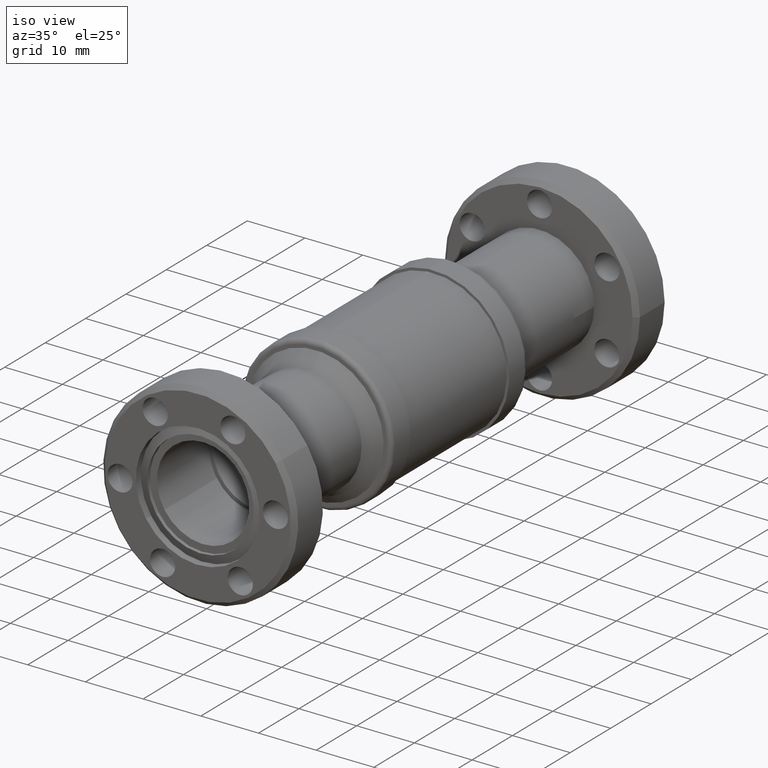
[diagram: clean part render]
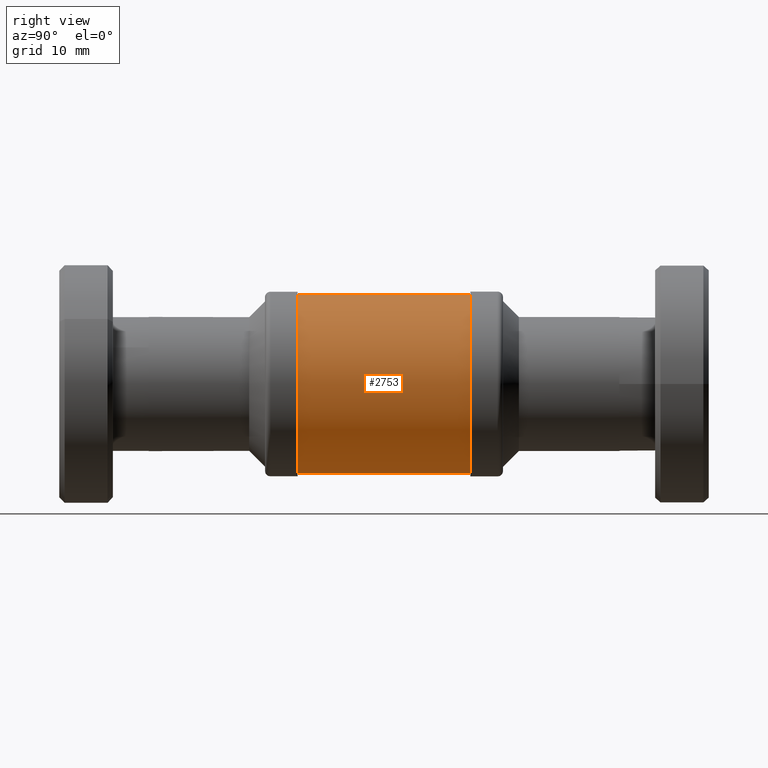
[diagram: tour spotlight — one face highlighted and labeled with its STEP entity id]
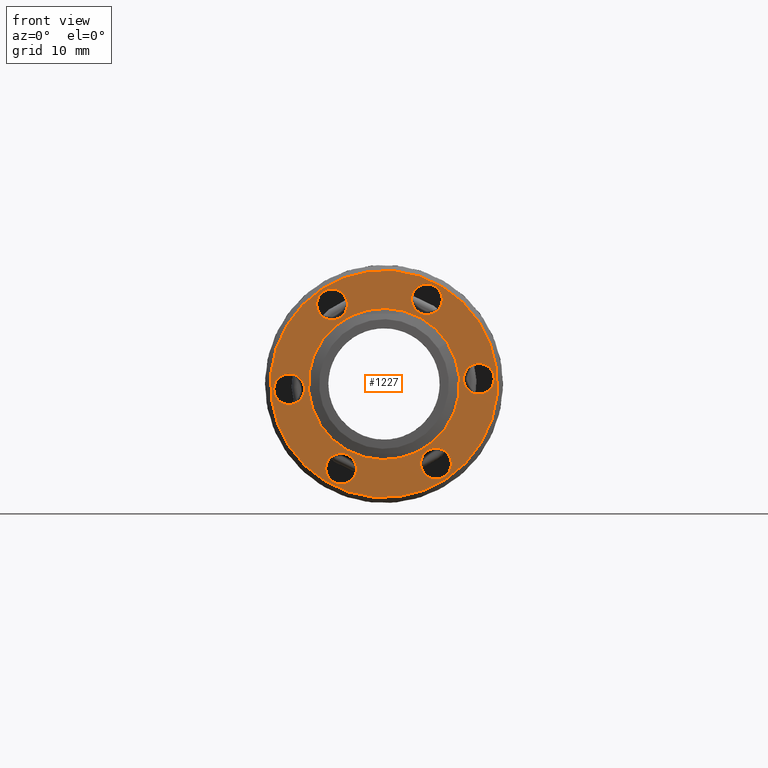
[diagram: tour spotlight — one face highlighted and labeled with its STEP entity id]
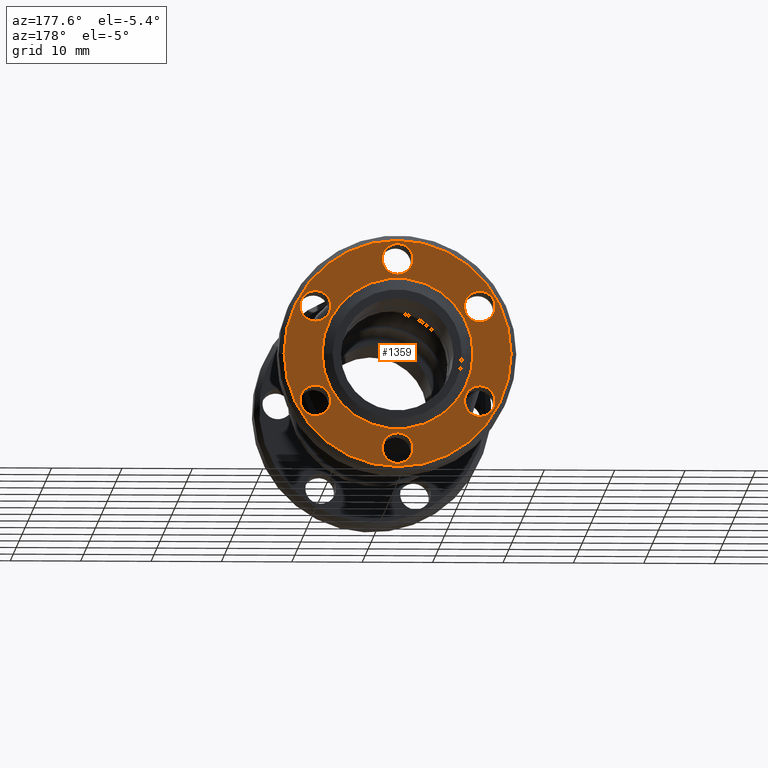
[diagram: tour spotlight — one face highlighted and labeled with its STEP entity id]
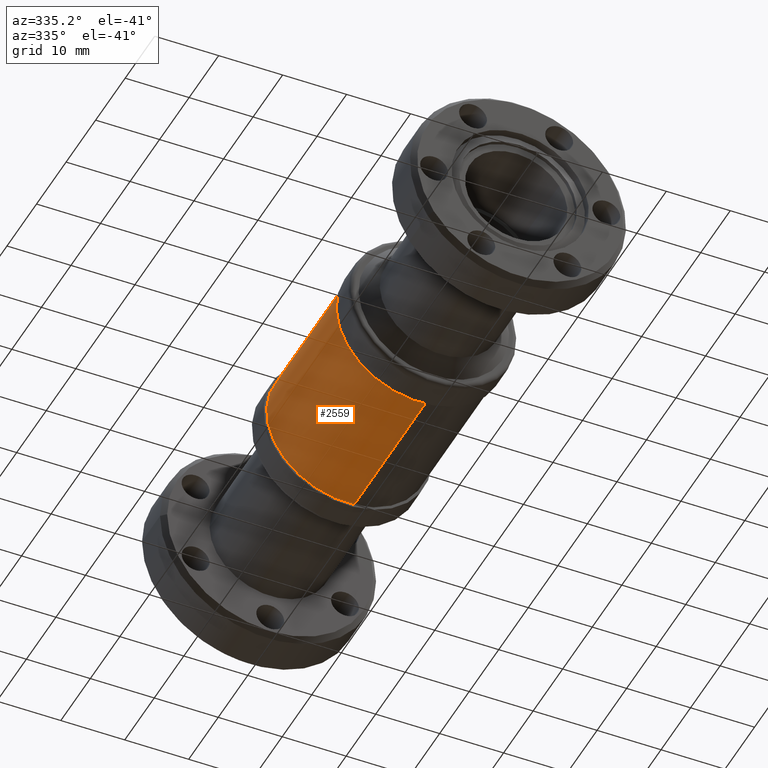
[diagram: tour spotlight — one face highlighted and labeled with its STEP entity id]
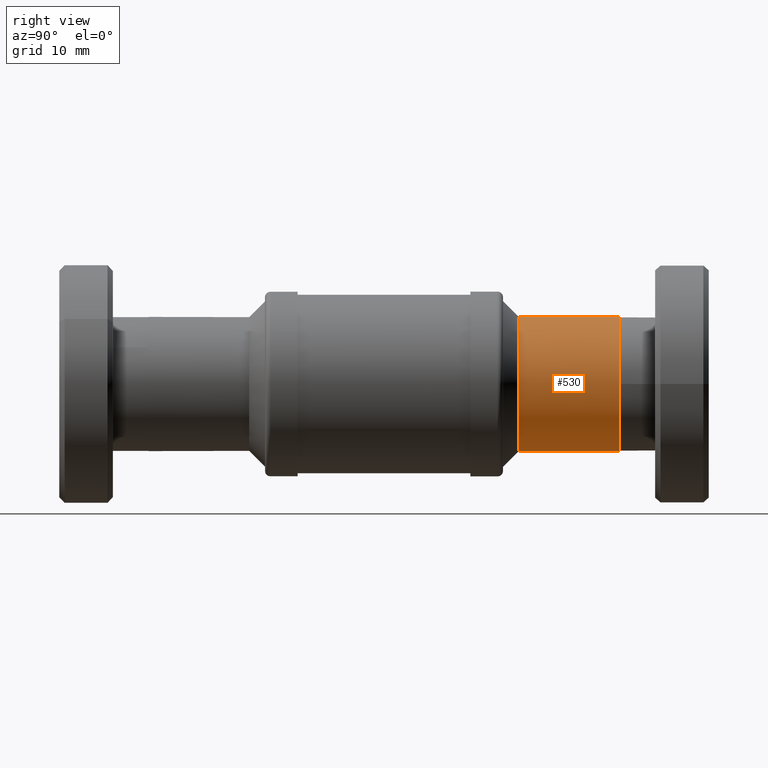
[diagram: tour spotlight — one face highlighted and labeled with its STEP entity id]
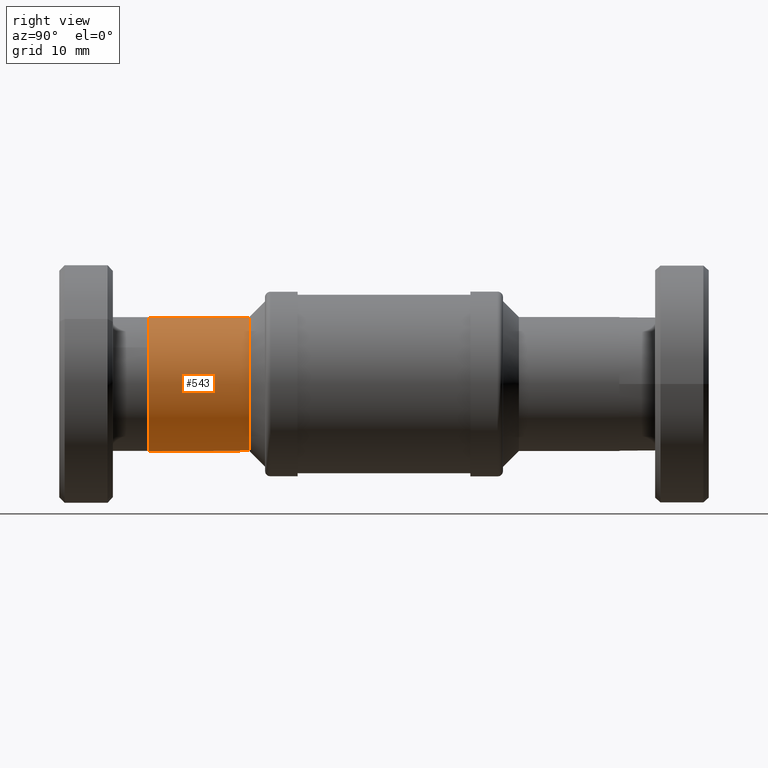
[diagram: tour spotlight — one face highlighted and labeled with its STEP entity id]
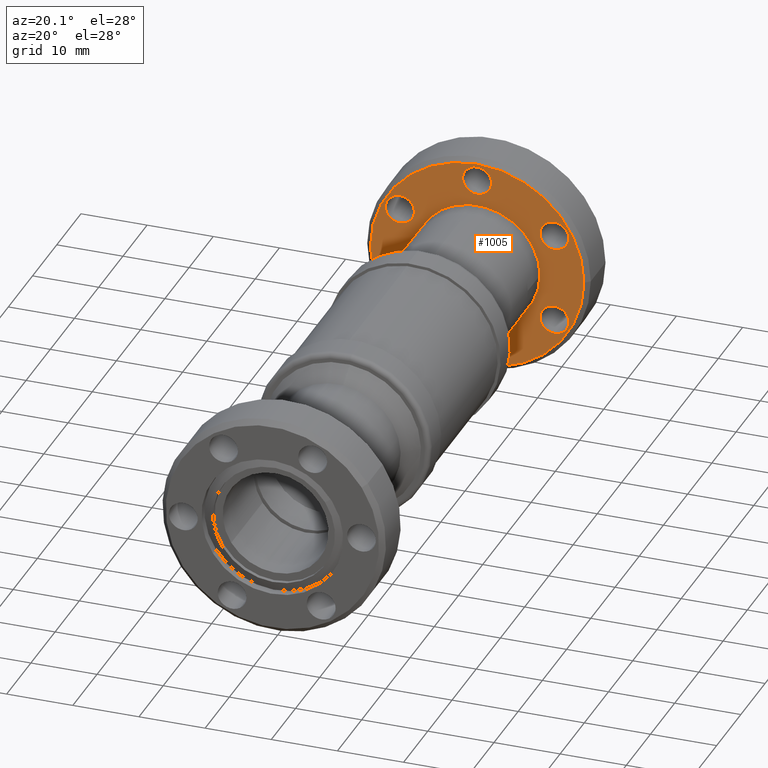
[diagram: tour spotlight — one face highlighted and labeled with its STEP entity id]
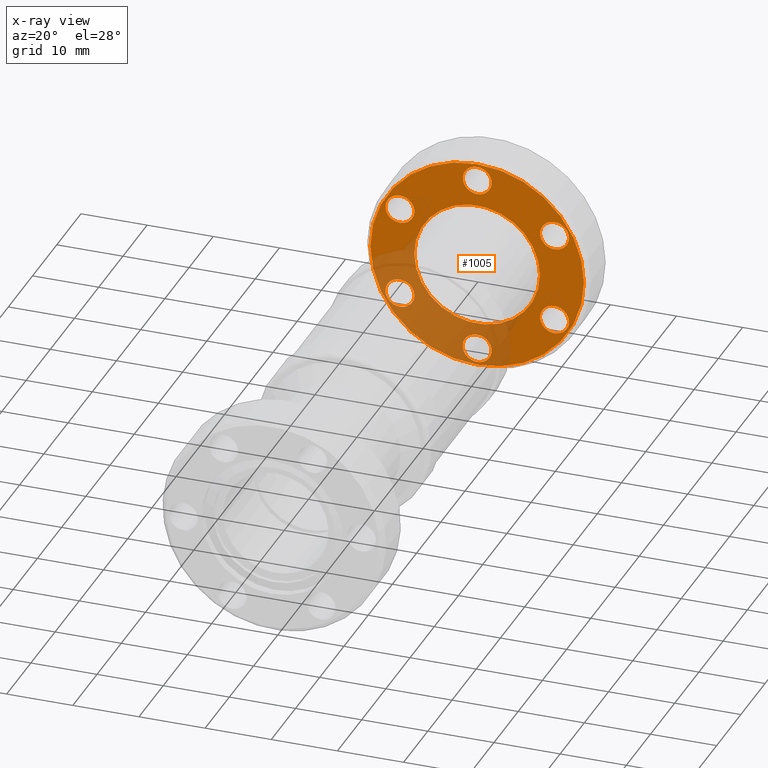
[diagram: x-ray of the same camera — body ghosted, this tour face saturated]
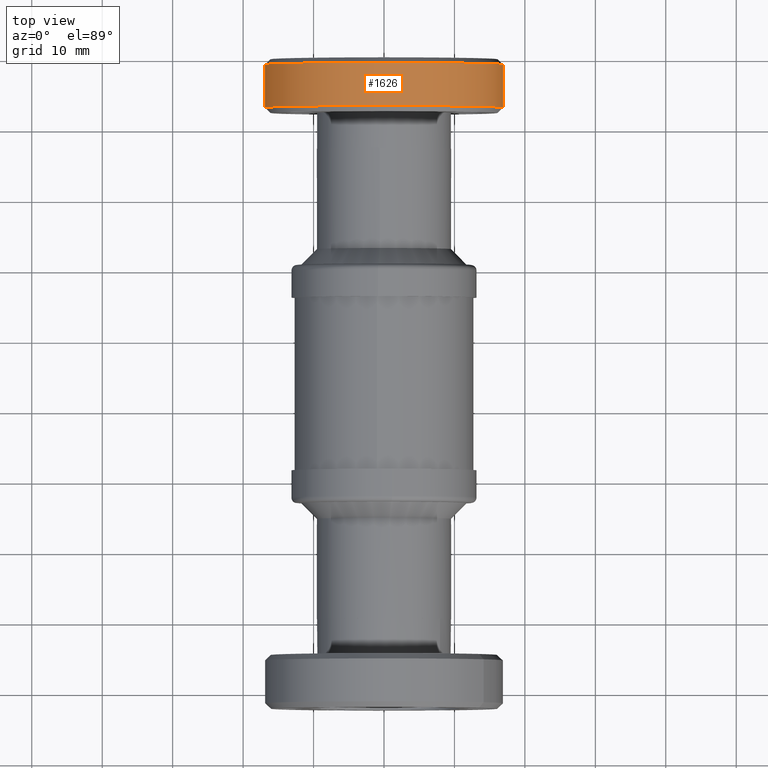
[diagram: tour spotlight — one face highlighted and labeled with its STEP entity id]
A machine part: a face-by-face anatomy tour. The part has 114 B-rep faces; the first image is the clean iso view, then the 8 largest visible faces are spotlighted one at a time (largest first), each with its STEP entity span.

Face 1 — right view, entity #2753. In plain terms, the highlighted cylindrical surface (partial cylindrical patch) has radius 12.7 mm, axis along (0, 1, 0).
Definition (entity closure, byte-faithful):
#56 = CARTESIAN_POINT ( 'NONE',  ( 0.03912126347681262051, 0.1369734246292619861, -0.4984671771982359112 ) ) ;
#84 = DIRECTION ( 'NONE',  ( 0.0000000000000000000, 1.000000000000000000, 0.0000000000000000000 ) ) ;
#156 = CYLINDRICAL_SURFACE ( 'NONE', #907, 0.4999999999999996669 ) ;
#311 = LINE ( 'NONE', #56, #2615 ) ;
#385 = EDGE_CURVE ( 'NONE', #570, #2782, #2407, .T. ) ;
#513 = DIRECTION ( 'NONE',  ( 0.07824252695362496346, 0.0000000000000000000, -0.9969343543964724885 ) ) ;
#570 = VERTEX_POINT ( 'NONE', #2587 ) ;
#618 = CARTESIAN_POINT ( 'NONE',  ( -0.03912126347681234295, 0.1369734246292619861, 0.4984671771982359112 ) ) ;
#698 = EDGE_LOOP ( 'NONE', ( #3168, #2435, #1839, #2312 ) ) ;
#701 = CARTESIAN_POINT ( 'NONE',  ( -0.03912126347681234295, -1.332527767497325932, 0.4984671771982359112 ) ) ;
#751 = DIRECTION ( 'NONE',  ( 0.0000000000000000000, 1.000000000000000000, 0.0000000000000000000 ) ) ;
#775 = AXIS2_PLACEMENT_3D ( 'NONE', #1214, #751, #1742 ) ;
#843 = VERTEX_POINT ( 'NONE', #2688 ) ;
#907 = AXIS2_PLACEMENT_3D ( 'NONE', #2529, #3060, #2737 ) ;
#987 = AXIS2_PLACEMENT_3D ( 'NONE', #2049, #1561, #513 ) ;
#1098 = DIRECTION ( 'NONE',  ( 0.0000000000000000000, 1.000000000000000000, 0.0000000000000000000 ) ) ;
#1214 = CARTESIAN_POINT ( 'NONE',  ( 1.102182119232617048E-16, -2.297472232502674405, 0.0000000000000000000 ) ) ;
#1426 = CIRCLE ( 'NONE', #775, 0.4999999999999996669 ) ;
#1550 = EDGE_CURVE ( 'NONE', #843, #1722, #311, .T. ) ;
#1561 = DIRECTION ( 'NONE',  ( 0.0000000000000000000, -1.000000000000000000, 0.0000000000000000000 ) ) ;
#1722 = VERTEX_POINT ( 'NONE', #3020 ) ;
#1742 = DIRECTION ( 'NONE',  ( -0.07824252695362496346, 0.0000000000000000000, 0.9969343543964724885 ) ) ;
#1762 = EDGE_CURVE ( 'NONE', #570, #843, #1426, .T. ) ;
#1839 = ORIENTED_EDGE ( 'NONE', *, *, #3207, .T. ) ;
#2049 = CARTESIAN_POINT ( 'NONE',  ( 1.102182119232617048E-16, -1.332527767497325932, 0.0000000000000000000 ) ) ;
#2312 = ORIENTED_EDGE ( 'NONE', *, *, #385, .F. ) ;
#2407 = LINE ( 'NONE', #618, #2954 ) ;
#2423 = CIRCLE ( 'NONE', #987, 0.4999999999999996669 ) ;
#2435 = ORIENTED_EDGE ( 'NONE', *, *, #1550, .T. ) ;
#2463 = FACE_OUTER_BOUND ( 'NONE', #698, .T. ) ;
#2529 = CARTESIAN_POINT ( 'NONE',  ( 1.102182119232617048E-16, 0.1369734246292619861, 0.0000000000000000000 ) ) ;
#2587 = CARTESIAN_POINT ( 'NONE',  ( -0.03912126347681234295, -2.297472232502674405, 0.4984671771982359112 ) ) ;
#2615 = VECTOR ( 'NONE', #1098, 39.37007874015748143 ) ;
#2688 = CARTESIAN_POINT ( 'NONE',  ( 0.03912126347681262051, -2.297472232502674405, -0.4984671771982359112 ) ) ;
#2737 = DIRECTION ( 'NONE',  ( -0.07824252695362496346, 0.0000000000000000000, 0.9969343543964724885 ) ) ;
#2753 = ADVANCED_FACE ( 'NONE', ( #2463 ), #156, .T. ) ;
#2782 = VERTEX_POINT ( 'NONE', #701 ) ;
#2954 = VECTOR ( 'NONE', #84, 39.37007874015748143 ) ;
#3020 = CARTESIAN_POINT ( 'NONE',  ( 0.03912126347681262051, -1.332527767497325932, -0.4984671771982359112 ) ) ;
#3060 = DIRECTION ( 'NONE',  ( 0.0000000000000000000, 1.000000000000000000, 0.0000000000000000000 ) ) ;
#3168 = ORIENTED_EDGE ( 'NONE', *, *, #1762, .T. ) ;
#3207 = EDGE_CURVE ( 'NONE', #1722, #2782, #2423, .T. ) ;

Face 2 — front view, entity #1227. In plain terms, the highlighted planar face has unit normal (-0, 1, 0).
Definition (entity closure, byte-faithful):
#11 = DIRECTION ( 'NONE',  ( 1.994103351830653137E-17, -1.000000000000000000, -6.698133886537806760E-17 ) ) ;
#26 = ORIENTED_EDGE ( 'NONE', *, *, #3186, .F. ) ;
#31 = CARTESIAN_POINT ( 'NONE',  ( -0.5316023812503256618, -3.630000000000000338, -0.3473095280135328200 ) ) ;
#32 = AXIS2_PLACEMENT_3D ( 'NONE', #2489, #163, #1477 ) ;
#41 = EDGE_CURVE ( 'NONE', #807, #47, #694, .T. ) ;
#47 = VERTEX_POINT ( 'NONE', #323 ) ;
#61 = EDGE_CURVE ( 'NONE', #516, #1377, #1763, .T. ) ;
#64 = DIRECTION ( 'NONE',  ( 1.994103351830651905E-17, -1.000000000000000000, -6.698133886537804295E-17 ) ) ;
#80 = EDGE_CURVE ( 'NONE', #1341, #2160, #200, .T. ) ;
#163 = DIRECTION ( 'NONE',  ( 1.994103351830651905E-17, -1.000000000000000000, -6.698133886537804295E-17 ) ) ;
#200 = CIRCLE ( 'NONE', #32, 0.08599999999999992373 ) ;
#206 = CARTESIAN_POINT ( 'NONE',  ( 0.2868036839877841082, -3.630000000000000338, 0.4017893065414214759 ) ) ;
#261 = ORIENTED_EDGE ( 'NONE', *, *, #859, .F. ) ;
#269 = DIRECTION ( 'NONE',  ( 1.994103351830651905E-17, -1.000000000000000000, -6.698133886537804295E-17 ) ) ;
#280 = ORIENTED_EDGE ( 'NONE', *, *, #674, .T. ) ;
#314 = DIRECTION ( 'NONE',  ( 0.8371691043312221581, 0.0000000000000000000, 0.5469441386039886055 ) ) ;
#323 = CARTESIAN_POINT ( 'NONE',  ( -0.2868036839877798339, -3.630000000000000338, -0.4017893065414231968 ) ) ;
#333 = AXIS2_PLACEMENT_3D ( 'NONE', #1122, #64, #1851 ) ;
#352 = EDGE_CURVE ( 'NONE', #2209, #1198, #1179, .T. ) ;
#365 = DIRECTION ( 'NONE',  ( 1.994103351830651905E-17, -1.000000000000000000, -6.698133886537804295E-17 ) ) ;
#368 = VERTEX_POINT ( 'NONE', #1873 ) ;
#401 = EDGE_CURVE ( 'NONE', #1411, #1770, #483, .T. ) ;
#427 = DIRECTION ( 'NONE',  ( -0.5469441386039888275, 0.0000000000000000000, 0.8371691043312222691 ) ) ;
#428 = FACE_BOUND ( 'NONE', #2517, .T. ) ;
#443 = AXIS2_PLACEMENT_3D ( 'NONE', #547, #11, #3073 ) ;
#474 = EDGE_LOOP ( 'NONE', ( #1145, #2349 ) ) ;
#483 = CIRCLE ( 'NONE', #1869, 0.4225000000000000422 ) ;
#516 = VERTEX_POINT ( 'NONE', #2978 ) ;
#520 = DIRECTION ( 'NONE',  ( 0.8371691043312221581, 0.0000000000000000000, 0.5469441386039886055 ) ) ;
#538 = CARTESIAN_POINT ( 'NONE',  ( 4.935326600563829153E-16, -3.630000000000000338, -1.326920237274670382E-31 ) ) ;
#547 = CARTESIAN_POINT ( 'NONE',  ( -0.5301938256665540417, -3.630000000000000338, -0.02924905511402724548 ) ) ;
#548 = EDGE_LOOP ( 'NONE', ( #261, #2442 ) ) ;
#562 = AXIS2_PLACEMENT_3D ( 'NONE', #2667, #614, #427 ) ;
#566 = DIRECTION ( 'NONE',  ( 1.224646799147352468E-16, -1.000000000000000000, 1.232595164407830946E-32 ) ) ;
#611 = ORIENTED_EDGE ( 'NONE', *, *, #1990, .F. ) ;
#614 = DIRECTION ( 'NONE',  ( 1.994103351830651905E-17, -1.000000000000000000, -6.698133886537804295E-17 ) ) ;
#621 = CARTESIAN_POINT ( 'NONE',  ( 0.2904273375987185823, -3.630000000000000338, -0.4445367943998790872 ) ) ;
#630 = DIRECTION ( 'NONE',  ( 1.224646799147352468E-16, -1.000000000000000000, 1.232595164407830946E-32 ) ) ;
#657 = DIRECTION ( 'NONE',  ( -0.5469441386039888275, 0.0000000000000000000, 0.8371691043312222691 ) ) ;
#663 = DIRECTION ( 'NONE',  ( -1.224646799147352221E-16, 1.000000000000000000, 1.232595164407831220E-32 ) ) ;
#672 = CARTESIAN_POINT ( 'NONE',  ( -0.3537039465799409754, -3.630000000000000338, -0.2310838985601851303 ) ) ;
#674 = EDGE_CURVE ( 'NONE', #2799, #2895, #1424, .T. ) ;
#694 = CIRCLE ( 'NONE', #3109, 0.08599999999999992373 ) ;
#706 = CARTESIAN_POINT ( 'NONE',  ( 0.5301938256665551519, -3.630000000000000338, 0.02924905511402354011 ) ) ;
#715 = DIRECTION ( 'NONE',  ( 0.8371691043312221581, 0.0000000000000000000, 0.5469441386039887165 ) ) ;
#720 = EDGE_LOOP ( 'NONE', ( #280, #823 ) ) ;
#807 = VERTEX_POINT ( 'NONE', #1636 ) ;
#823 = ORIENTED_EDGE ( 'NONE', *, *, #3343, .T. ) ;
#834 = AXIS2_PLACEMENT_3D ( 'NONE', #1186, #942, #1616 ) ;
#859 = EDGE_CURVE ( 'NONE', #1989, #368, #957, .T. ) ;
#895 = AXIS2_PLACEMENT_3D ( 'NONE', #2054, #269, #2321 ) ;
#902 = EDGE_CURVE ( 'NONE', #368, #1989, #2984, .T. ) ;
#912 = CARTESIAN_POINT ( 'NONE',  ( -0.2904273375987174721, -3.630000000000000338, 0.4445367943998790872 ) ) ;
#942 = DIRECTION ( 'NONE',  ( 1.994103351830651905E-17, -1.000000000000000000, -6.698133886537804295E-17 ) ) ;
#957 = CIRCLE ( 'NONE', #1568, 0.08599999999999990985 ) ;
#959 = VERTEX_POINT ( 'NONE', #3015 ) ;
#966 = DIRECTION ( 'NONE',  ( 1.224646799147352468E-16, -1.000000000000000000, 1.232595164407830946E-32 ) ) ;
#1049 = CIRCLE ( 'NONE', #562, 0.08599999999999992373 ) ;
#1122 = CARTESIAN_POINT ( 'NONE',  ( -0.2904273375987174721, -3.630000000000000338, 0.4445367943998790872 ) ) ;
#1145 = ORIENTED_EDGE ( 'NONE', *, *, #2233, .F. ) ;
#1158 = AXIS2_PLACEMENT_3D ( 'NONE', #1464, #1731, #1480 ) ;
#1166 = ORIENTED_EDGE ( 'NONE', *, *, #61, .F. ) ;
#1168 = EDGE_LOOP ( 'NONE', ( #2490, #2607 ) ) ;
#1170 = FACE_OUTER_BOUND ( 'NONE', #720, .T. ) ;
#1179 = CIRCLE ( 'NONE', #2623, 0.08599999999999993761 ) ;
#1186 = CARTESIAN_POINT ( 'NONE',  ( 0.5301938256665551519, -3.630000000000000338, 0.02924905511402354011 ) ) ;
#1198 = VERTEX_POINT ( 'NONE', #2462 ) ;
#1203 = PLANE ( 'NONE',  #1520 ) ;
#1227 = ADVANCED_FACE ( 'NONE', ( #2003, #428, #1453, #2515, #2480, #1752, #1991, #1170 ), #1203, .F. ) ;
#1341 = VERTEX_POINT ( 'NONE', #2852 ) ;
#1374 = CIRCLE ( 'NONE', #1754, 0.08599999999999992373 ) ;
#1377 = VERTEX_POINT ( 'NONE', #2181 ) ;
#1411 = VERTEX_POINT ( 'NONE', #672 ) ;
#1421 = DIRECTION ( 'NONE',  ( -0.5469441386039884945, 0.0000000000000000000, 0.8371691043312223801 ) ) ;
#1424 = CIRCLE ( 'NONE', #1843, 0.6350000000000000089 ) ;
#1453 = FACE_BOUND ( 'NONE', #548, .T. ) ;
#1464 = CARTESIAN_POINT ( 'NONE',  ( -0.2397664880678368471, -3.630000000000000338, -0.4737858495139082304 ) ) ;
#1477 = DIRECTION ( 'NONE',  ( -0.5469441386039888275, 0.0000000000000000000, 0.8371691043312222691 ) ) ;
#1480 = DIRECTION ( 'NONE',  ( -0.5469441386039888275, 0.0000000000000000000, 0.8371691043312222691 ) ) ;
#1520 = AXIS2_PLACEMENT_3D ( 'NONE', #1704, #663, #3287 ) ;
#1568 = AXIS2_PLACEMENT_3D ( 'NONE', #912, #2389, #1421 ) ;
#1581 = CIRCLE ( 'NONE', #2123, 0.4225000000000000422 ) ;
#1583 = CARTESIAN_POINT ( 'NONE',  ( 4.935326600563829153E-16, -3.630000000000000338, -1.326920237274670382E-31 ) ) ;
#1616 = DIRECTION ( 'NONE',  ( -0.5469441386039887165, 0.0000000000000000000, 0.8371691043312222691 ) ) ;
#1633 = CIRCLE ( 'NONE', #895, 0.08599999999999992373 ) ;
#1636 = CARTESIAN_POINT ( 'NONE',  ( -0.1927292921478938881, -3.630000000000000338, -0.5457823924863932641 ) ) ;
#1637 = DIRECTION ( 'NONE',  ( 1.224646799147352468E-16, -1.000000000000000000, 1.232595164407830946E-32 ) ) ;
#1641 = ORIENTED_EDGE ( 'NONE', *, *, #352, .F. ) ;
#1649 = CARTESIAN_POINT ( 'NONE',  ( 4.935326600563829153E-16, -3.630000000000000338, -1.326920237274670382E-31 ) ) ;
#1657 = DIRECTION ( 'NONE',  ( 0.8371691043312221581, 0.0000000000000000000, 0.5469441386039887165 ) ) ;
#1694 = EDGE_CURVE ( 'NONE', #47, #807, #2605, .T. ) ;
#1704 = CARTESIAN_POINT ( 'NONE',  ( -0.3537039465799409754, -3.630000000000000338, -0.2310838985601852413 ) ) ;
#1731 = DIRECTION ( 'NONE',  ( 1.994103351830651905E-17, -1.000000000000000000, -6.698133886537804295E-17 ) ) ;
#1741 = CARTESIAN_POINT ( 'NONE',  ( 4.935326600563829153E-16, -3.630000000000000338, -1.326920237274670382E-31 ) ) ;
#1744 = DIRECTION ( 'NONE',  ( 1.994103351830651905E-17, -1.000000000000000000, -6.698133886537804295E-17 ) ) ;
#1752 = FACE_BOUND ( 'NONE', #2644, .T. ) ;
#1754 = AXIS2_PLACEMENT_3D ( 'NONE', #621, #365, #2159 ) ;
#1763 = CIRCLE ( 'NONE', #2397, 0.08599999999999993761 ) ;
#1770 = VERTEX_POINT ( 'NONE', #2523 ) ;
#1813 = ORIENTED_EDGE ( 'NONE', *, *, #1924, .F. ) ;
#1843 = AXIS2_PLACEMENT_3D ( 'NONE', #538, #566, #520 ) ;
#1851 = DIRECTION ( 'NONE',  ( -0.5469441386039884945, 0.0000000000000000000, 0.8371691043312223801 ) ) ;
#1869 = AXIS2_PLACEMENT_3D ( 'NONE', #1583, #1637, #1657 ) ;
#1873 = CARTESIAN_POINT ( 'NONE',  ( -0.2433901416787745409, -3.630000000000000338, 0.3725402514273939980 ) ) ;
#1888 = DIRECTION ( 'NONE',  ( 1.994103351830653137E-17, -1.000000000000000000, -6.698133886537806760E-17 ) ) ;
#1910 = VERTEX_POINT ( 'NONE', #2885 ) ;
#1924 = EDGE_CURVE ( 'NONE', #1910, #959, #1633, .T. ) ;
#1931 = CARTESIAN_POINT ( 'NONE',  ( -0.2397664880678368471, -3.630000000000000338, -0.4737858495139082304 ) ) ;
#1964 = EDGE_CURVE ( 'NONE', #1377, #516, #2608, .T. ) ;
#1989 = VERTEX_POINT ( 'NONE', #2734 ) ;
#1990 = EDGE_CURVE ( 'NONE', #2160, #1341, #1049, .T. ) ;
#1991 = FACE_BOUND ( 'NONE', #474, .T. ) ;
#1999 = CIRCLE ( 'NONE', #2755, 0.6350000000000000089 ) ;
#2003 = FACE_BOUND ( 'NONE', #2070, .T. ) ;
#2054 = CARTESIAN_POINT ( 'NONE',  ( 0.2904273375987185823, -3.630000000000000338, -0.4445367943998790872 ) ) ;
#2070 = EDGE_LOOP ( 'NONE', ( #1166, #2628 ) ) ;
#2111 = DIRECTION ( 'NONE',  ( 1.994103351830651905E-17, -1.000000000000000000, -6.698133886537804295E-17 ) ) ;
#2123 = AXIS2_PLACEMENT_3D ( 'NONE', #1741, #966, #715 ) ;
#2127 = EDGE_CURVE ( 'NONE', #959, #1910, #1374, .T. ) ;
#2159 = DIRECTION ( 'NONE',  ( -0.5469441386039888275, 0.0000000000000000000, 0.8371691043312222691 ) ) ;
#2160 = VERTEX_POINT ( 'NONE', #206 ) ;
#2181 = CARTESIAN_POINT ( 'NONE',  ( 0.5772310215864980831, -3.630000000000000338, -0.04274748785846153171 ) ) ;
#2209 = VERTEX_POINT ( 'NONE', #3238 ) ;
#2233 = EDGE_CURVE ( 'NONE', #1770, #1411, #1581, .T. ) ;
#2321 = DIRECTION ( 'NONE',  ( -0.5469441386039888275, 0.0000000000000000000, 0.8371691043312222691 ) ) ;
#2349 = ORIENTED_EDGE ( 'NONE', *, *, #401, .F. ) ;
#2389 = DIRECTION ( 'NONE',  ( 1.994103351830651905E-17, -1.000000000000000000, -6.698133886537804295E-17 ) ) ;
#2397 = AXIS2_PLACEMENT_3D ( 'NONE', #706, #1744, #3278 ) ;
#2442 = ORIENTED_EDGE ( 'NONE', *, *, #902, .F. ) ;
#2462 = CARTESIAN_POINT ( 'NONE',  ( -0.4831566297466110549, -3.630000000000000338, -0.1012455980865122757 ) ) ;
#2480 = FACE_BOUND ( 'NONE', #1168, .T. ) ;
#2489 = CARTESIAN_POINT ( 'NONE',  ( 0.2397664880678411492, -3.630000000000000338, 0.4737858495139065651 ) ) ;
#2490 = ORIENTED_EDGE ( 'NONE', *, *, #1694, .F. ) ;
#2503 = CARTESIAN_POINT ( 'NONE',  ( 0.5316023812503266610, -3.630000000000000338, 0.3473095280135329865 ) ) ;
#2515 = FACE_BOUND ( 'NONE', #2624, .T. ) ;
#2517 = EDGE_LOOP ( 'NONE', ( #2834, #611 ) ) ;
#2523 = CARTESIAN_POINT ( 'NONE',  ( 0.3537039465799419191, -3.630000000000000338, 0.2310838985601852413 ) ) ;
#2580 = ORIENTED_EDGE ( 'NONE', *, *, #2127, .F. ) ;
#2605 = CIRCLE ( 'NONE', #1158, 0.08599999999999992373 ) ;
#2607 = ORIENTED_EDGE ( 'NONE', *, *, #41, .F. ) ;
#2608 = CIRCLE ( 'NONE', #834, 0.08599999999999993761 ) ;
#2623 = AXIS2_PLACEMENT_3D ( 'NONE', #2944, #1888, #2922 ) ;
#2624 = EDGE_LOOP ( 'NONE', ( #1641, #26 ) ) ;
#2628 = ORIENTED_EDGE ( 'NONE', *, *, #1964, .F. ) ;
#2641 = CIRCLE ( 'NONE', #443, 0.08599999999999993761 ) ;
#2644 = EDGE_LOOP ( 'NONE', ( #1813, #2580 ) ) ;
#2667 = CARTESIAN_POINT ( 'NONE',  ( 0.2397664880678411492, -3.630000000000000338, 0.4737858495139065651 ) ) ;
#2734 = CARTESIAN_POINT ( 'NONE',  ( -0.3374645335186604589, -3.630000000000000338, 0.5165333373723640653 ) ) ;
#2755 = AXIS2_PLACEMENT_3D ( 'NONE', #1649, #630, #314 ) ;
#2799 = VERTEX_POINT ( 'NONE', #31 ) ;
#2834 = ORIENTED_EDGE ( 'NONE', *, *, #80, .F. ) ;
#2852 = CARTESIAN_POINT ( 'NONE',  ( 0.1927292921478981624, -3.630000000000000338, 0.5457823924863915988 ) ) ;
#2885 = CARTESIAN_POINT ( 'NONE',  ( 0.2433901416787755956, -3.630000000000000338, -0.3725402514273939980 ) ) ;
#2895 = VERTEX_POINT ( 'NONE', #2503 ) ;
#2922 = DIRECTION ( 'NONE',  ( -0.5469441386039887165, 0.0000000000000000000, 0.8371691043312222691 ) ) ;
#2944 = CARTESIAN_POINT ( 'NONE',  ( -0.5301938256665540417, -3.630000000000000338, -0.02924905511402724548 ) ) ;
#2978 = CARTESIAN_POINT ( 'NONE',  ( 0.4831566297466122206, -3.630000000000000338, 0.1012455980865085980 ) ) ;
#2984 = CIRCLE ( 'NONE', #333, 0.08599999999999990985 ) ;
#3015 = CARTESIAN_POINT ( 'NONE',  ( 0.3374645335186615136, -3.630000000000000338, -0.5165333373723640653 ) ) ;
#3073 = DIRECTION ( 'NONE',  ( -0.5469441386039887165, 0.0000000000000000000, 0.8371691043312222691 ) ) ;
#3109 = AXIS2_PLACEMENT_3D ( 'NONE', #1931, #2111, #657 ) ;
#3186 = EDGE_CURVE ( 'NONE', #1198, #2209, #2641, .T. ) ;
#3238 = CARTESIAN_POINT ( 'NONE',  ( -0.5772310215864969729, -3.630000000000000338, 0.04274748785845781246 ) ) ;
#3278 = DIRECTION ( 'NONE',  ( -0.5469441386039887165, 0.0000000000000000000, 0.8371691043312222691 ) ) ;
#3287 = DIRECTION ( 'NONE',  ( -0.8371691043312221581, -1.025236463964286907E-16, -0.5469441386039886055 ) ) ;
#3343 = EDGE_CURVE ( 'NONE', #2895, #2799, #1999, .T. ) ;

Face 3 — auxiliary view, entity #1359. In plain terms, the highlighted planar face has unit normal (0, -1, 0).
Definition (entity closure, byte-faithful):
#13 = AXIS2_PLACEMENT_3D ( 'NONE', #3141, #113, #3158 ) ;
#34 = CARTESIAN_POINT ( 'NONE',  ( 4.898587196589409377E-17, -6.829619984160658046E-17, 0.0000000000000000000 ) ) ;
#69 = ORIENTED_EDGE ( 'NONE', *, *, #3121, .F. ) ;
#104 = VERTEX_POINT ( 'NONE', #3308 ) ;
#113 = DIRECTION ( 'NONE',  ( -0.0000000000000000000, 1.000000000000000000, -0.0000000000000000000 ) ) ;
#129 = DIRECTION ( 'NONE',  ( 0.0000000000000000000, 0.0000000000000000000, 1.000000000000000000 ) ) ;
#226 = EDGE_CURVE ( 'NONE', #1826, #3104, #915, .T. ) ;
#260 = CARTESIAN_POINT ( 'NONE',  ( -0.6349999999999998979, -1.460612715874634479E-16, 7.960204194457795477E-17 ) ) ;
#271 = CARTESIAN_POINT ( 'NONE',  ( 0.4598594894095375807, 6.204972916650092399E-17, -0.2654999999999989591 ) ) ;
#331 = DIRECTION ( 'NONE',  ( -1.000000000000000000, -1.224646799147352221E-16, 0.0000000000000000000 ) ) ;
#342 = CIRCLE ( 'NONE', #2232, 0.08599999999999990985 ) ;
#343 = DIRECTION ( 'NONE',  ( 1.224646799147352221E-16, -1.000000000000000000, 0.0000000000000000000 ) ) ;
#374 = DIRECTION ( 'NONE',  ( -1.224646799147352221E-16, 1.000000000000000000, -0.0000000000000000000 ) ) ;
#404 = AXIS2_PLACEMENT_3D ( 'NONE', #646, #1863, #129 ) ;
#415 = CARTESIAN_POINT ( 'NONE',  ( -0.4598594894095338059, -5.058336118608380170E-17, -0.2655000000000053428 ) ) ;
#418 = DIRECTION ( 'NONE',  ( 0.0000000000000000000, 0.0000000000000000000, 1.000000000000000000 ) ) ;
#424 = EDGE_LOOP ( 'NONE', ( #2897, #2412 ) ) ;
#430 = AXIS2_PLACEMENT_3D ( 'NONE', #415, #3274, #3237 ) ;
#486 = DIRECTION ( 'NONE',  ( -0.0000000000000000000, 1.000000000000000000, -0.0000000000000000000 ) ) ;
#510 = CIRCLE ( 'NONE', #1363, 0.4224999999999999867 ) ;
#523 = CIRCLE ( 'NONE', #1272, 0.08599999999999990985 ) ;
#526 = CIRCLE ( 'NONE', #1706, 0.08599999999999995148 ) ;
#541 = ORIENTED_EDGE ( 'NONE', *, *, #2704, .F. ) ;
#625 = VERTEX_POINT ( 'NONE', #3114 ) ;
#626 = CIRCLE ( 'NONE', #1056, 0.08599999999999990985 ) ;
#628 = EDGE_CURVE ( 'NONE', #2118, #1532, #826, .T. ) ;
#646 = CARTESIAN_POINT ( 'NONE',  ( 0.0000000000000000000, 5.733183990208335427E-18, -0.5310000000000000275 ) ) ;
#682 = ORIENTED_EDGE ( 'NONE', *, *, #2635, .F. ) ;
#695 = EDGE_CURVE ( 'NONE', #2115, #104, #510, .T. ) ;
#724 = ORIENTED_EDGE ( 'NONE', *, *, #1410, .F. ) ;
#726 = AXIS2_PLACEMENT_3D ( 'NONE', #2069, #3122, #1784 ) ;
#819 = EDGE_LOOP ( 'NONE', ( #724, #1315 ) ) ;
#826 = CIRCLE ( 'NONE', #2714, 0.08599999999999997924 ) ;
#885 = CARTESIAN_POINT ( 'NONE',  ( 0.4598594894095358043, 6.204972916650070213E-17, 0.2655000000000021787 ) ) ;
#891 = CIRCLE ( 'NONE', #726, 0.08599999999999997924 ) ;
#909 = AXIS2_PLACEMENT_3D ( 'NONE', #2452, #3218, #2982 ) ;
#915 = CIRCLE ( 'NONE', #1332, 0.08599999999999990985 ) ;
#917 = CARTESIAN_POINT ( 'NONE',  ( 0.6349999999999998979, 9.468871904250276149E-18, 0.0000000000000000000 ) ) ;
#938 = ORIENTED_EDGE ( 'NONE', *, *, #628, .F. ) ;
#1032 = ORIENTED_EDGE ( 'NONE', *, *, #2911, .T. ) ;
#1041 = DIRECTION ( 'NONE',  ( 0.0000000000000000000, 0.0000000000000000000, 1.000000000000000000 ) ) ;
#1042 = EDGE_CURVE ( 'NONE', #2839, #3047, #342, .T. ) ;
#1056 = AXIS2_PLACEMENT_3D ( 'NONE', #1790, #486, #1551 ) ;
#1067 = DIRECTION ( 'NONE',  ( -0.0000000000000000000, 1.000000000000000000, -0.0000000000000000000 ) ) ;
#1087 = ORIENTED_EDGE ( 'NONE', *, *, #2888, .F. ) ;
#1115 = DIRECTION ( 'NONE',  ( -1.224646799147352221E-16, 1.000000000000000000, -0.0000000000000000000 ) ) ;
#1150 = CARTESIAN_POINT ( 'NONE',  ( 4.898587196589409377E-17, -6.829619984160658046E-17, 0.0000000000000000000 ) ) ;
#1253 = AXIS2_PLACEMENT_3D ( 'NONE', #2998, #1690, #1404 ) ;
#1266 = CARTESIAN_POINT ( 'NONE',  ( 0.4598594894095375807, 6.204972916650092399E-17, -0.1794999999999990214 ) ) ;
#1272 = AXIS2_PLACEMENT_3D ( 'NONE', #885, #2958, #3044 ) ;
#1278 = CARTESIAN_POINT ( 'NONE',  ( 0.4598594894095358043, 6.204972916650070213E-17, 0.1795000000000022689 ) ) ;
#1281 = EDGE_LOOP ( 'NONE', ( #1749, #1087 ) ) ;
#1287 = DIRECTION ( 'NONE',  ( -0.0000000000000000000, 1.000000000000000000, -0.0000000000000000000 ) ) ;
#1295 = ORIENTED_EDGE ( 'NONE', *, *, #3313, .T. ) ;
#1315 = ORIENTED_EDGE ( 'NONE', *, *, #226, .F. ) ;
#1332 = AXIS2_PLACEMENT_3D ( 'NONE', #271, #3069, #1041 ) ;
#1357 = CARTESIAN_POINT ( 'NONE',  ( -0.4598594894095393570, -5.058336118608447963E-17, 0.2654999999999957394 ) ) ;
#1359 = ADVANCED_FACE ( 'NONE', ( #3129, #2603, #1875, #1837, #2653, #1408, #2393, #2222 ), #2433, .F. ) ;
#1363 = AXIS2_PLACEMENT_3D ( 'NONE', #34, #1518, #2340 ) ;
#1395 = VERTEX_POINT ( 'NONE', #917 ) ;
#1404 = DIRECTION ( 'NONE',  ( -1.000000000000000000, -1.224646799147352221E-16, 0.0000000000000000000 ) ) ;
#1408 = FACE_BOUND ( 'NONE', #2992, .T. ) ;
#1410 = EDGE_CURVE ( 'NONE', #3104, #1826, #3217, .T. ) ;
#1420 = CIRCLE ( 'NONE', #404, 0.08599999999999990985 ) ;
#1513 = CARTESIAN_POINT ( 'NONE',  ( 0.4598594894095358043, 6.204972916650070213E-17, 0.3515000000000020886 ) ) ;
#1518 = DIRECTION ( 'NONE',  ( -1.224646799147352221E-16, 1.000000000000000000, -0.0000000000000000000 ) ) ;
#1525 = EDGE_CURVE ( 'NONE', #1877, #1988, #526, .T. ) ;
#1530 = CARTESIAN_POINT ( 'NONE',  ( -0.4598594894095338059, -5.058336118608380170E-17, -0.2655000000000053428 ) ) ;
#1532 = VERTEX_POINT ( 'NONE', #2315 ) ;
#1540 = ORIENTED_EDGE ( 'NONE', *, *, #2274, .F. ) ;
#1551 = DIRECTION ( 'NONE',  ( 0.0000000000000000000, 0.0000000000000000000, 1.000000000000000000 ) ) ;
#1582 = CARTESIAN_POINT ( 'NONE',  ( -0.4598594894095393570, -5.058336118608447963E-17, 0.1794999999999958296 ) ) ;
#1611 = CARTESIAN_POINT ( 'NONE',  ( 4.898587196589409377E-17, -6.829619984160658046E-17, 0.0000000000000000000 ) ) ;
#1663 = VERTEX_POINT ( 'NONE', #1278 ) ;
#1690 = DIRECTION ( 'NONE',  ( -1.224646799147352221E-16, 1.000000000000000000, -0.0000000000000000000 ) ) ;
#1706 = AXIS2_PLACEMENT_3D ( 'NONE', #1357, #1067, #1842 ) ;
#1717 = EDGE_LOOP ( 'NONE', ( #541, #1934 ) ) ;
#1749 = ORIENTED_EDGE ( 'NONE', *, *, #1042, .F. ) ;
#1766 = EDGE_LOOP ( 'NONE', ( #69, #938 ) ) ;
#1776 = CARTESIAN_POINT ( 'NONE',  ( 0.4598594894095375807, 6.204972916650092399E-17, -0.3514999999999988134 ) ) ;
#1784 = DIRECTION ( 'NONE',  ( 0.0000000000000000000, 0.0000000000000000000, 1.000000000000000000 ) ) ;
#1790 = CARTESIAN_POINT ( 'NONE',  ( 0.0000000000000000000, 5.733183990208335427E-18, -0.5310000000000000275 ) ) ;
#1826 = VERTEX_POINT ( 'NONE', #1776 ) ;
#1837 = FACE_BOUND ( 'NONE', #1717, .T. ) ;
#1842 = DIRECTION ( 'NONE',  ( 0.0000000000000000000, 0.0000000000000000000, 1.000000000000000000 ) ) ;
#1863 = DIRECTION ( 'NONE',  ( -0.0000000000000000000, 1.000000000000000000, -0.0000000000000000000 ) ) ;
#1870 = CIRCLE ( 'NONE', #430, 0.08599999999999990985 ) ;
#1875 = FACE_BOUND ( 'NONE', #1766, .T. ) ;
#1877 = VERTEX_POINT ( 'NONE', #1582 ) ;
#1929 = CARTESIAN_POINT ( 'NONE',  ( 0.0000000000000000000, 5.733183990208335427E-18, 0.5310000000000000275 ) ) ;
#1934 = ORIENTED_EDGE ( 'NONE', *, *, #2043, .F. ) ;
#1938 = CARTESIAN_POINT ( 'NONE',  ( -0.4598594894095338059, -5.058336118608380170E-17, -0.1795000000000054607 ) ) ;
#1988 = VERTEX_POINT ( 'NONE', #2479 ) ;
#2043 = EDGE_CURVE ( 'NONE', #1663, #3183, #2375, .T. ) ;
#2059 = CIRCLE ( 'NONE', #13, 0.08599999999999995148 ) ;
#2069 = CARTESIAN_POINT ( 'NONE',  ( 0.0000000000000000000, 5.733183990208335427E-18, 0.5310000000000000275 ) ) ;
#2115 = VERTEX_POINT ( 'NONE', #3257 ) ;
#2118 = VERTEX_POINT ( 'NONE', #2144 ) ;
#2130 = EDGE_LOOP ( 'NONE', ( #1295, #1032 ) ) ;
#2144 = CARTESIAN_POINT ( 'NONE',  ( 1.053196247266723121E-17, 5.733183990208335427E-18, 0.4450000000000001177 ) ) ;
#2163 = EDGE_LOOP ( 'NONE', ( #682, #2784 ) ) ;
#2180 = CARTESIAN_POINT ( 'NONE',  ( 0.4598594894095358043, 6.204972916650070213E-17, 0.2655000000000021787 ) ) ;
#2205 = DIRECTION ( 'NONE',  ( 1.000000000000000000, 1.224646799147352221E-16, 0.0000000000000000000 ) ) ;
#2222 = FACE_OUTER_BOUND ( 'NONE', #2130, .T. ) ;
#2232 = AXIS2_PLACEMENT_3D ( 'NONE', #1530, #1287, #3341 ) ;
#2264 = CARTESIAN_POINT ( 'NONE',  ( -0.4598594894095338059, -5.058336118608380170E-17, -0.3515000000000052527 ) ) ;
#2274 = EDGE_CURVE ( 'NONE', #2359, #625, #626, .T. ) ;
#2294 = CARTESIAN_POINT ( 'NONE',  ( 1.053196247266723121E-17, 5.733183990208335427E-18, -0.6169999999999999929 ) ) ;
#2315 = CARTESIAN_POINT ( 'NONE',  ( 0.0000000000000000000, 5.733183990208335427E-18, 0.6169999999999999929 ) ) ;
#2340 = DIRECTION ( 'NONE',  ( -1.000000000000000000, -1.224646799147352468E-16, 0.0000000000000000000 ) ) ;
#2359 = VERTEX_POINT ( 'NONE', #2294 ) ;
#2375 = CIRCLE ( 'NONE', #2817, 0.08599999999999990985 ) ;
#2391 = DIRECTION ( 'NONE',  ( 0.0000000000000000000, 0.0000000000000000000, 1.000000000000000000 ) ) ;
#2393 = FACE_BOUND ( 'NONE', #424, .T. ) ;
#2412 = ORIENTED_EDGE ( 'NONE', *, *, #695, .F. ) ;
#2419 = DIRECTION ( 'NONE',  ( -1.000000000000000000, -1.224646799147352468E-16, 0.0000000000000000000 ) ) ;
#2433 = PLANE ( 'NONE',  #2835 ) ;
#2452 = CARTESIAN_POINT ( 'NONE',  ( 0.4598594894095375807, 6.204972916650092399E-17, -0.2654999999999989591 ) ) ;
#2479 = CARTESIAN_POINT ( 'NONE',  ( -0.4598594894095393570, -5.058336118608447963E-17, 0.3514999999999957048 ) ) ;
#2485 = AXIS2_PLACEMENT_3D ( 'NONE', #1611, #1115, #331 ) ;
#2492 = VERTEX_POINT ( 'NONE', #260 ) ;
#2556 = EDGE_CURVE ( 'NONE', #625, #2359, #1420, .T. ) ;
#2603 = FACE_BOUND ( 'NONE', #2163, .T. ) ;
#2635 = EDGE_CURVE ( 'NONE', #1988, #1877, #2059, .T. ) ;
#2653 = FACE_BOUND ( 'NONE', #819, .T. ) ;
#2704 = EDGE_CURVE ( 'NONE', #3183, #1663, #523, .T. ) ;
#2714 = AXIS2_PLACEMENT_3D ( 'NONE', #1929, #2925, #2391 ) ;
#2784 = ORIENTED_EDGE ( 'NONE', *, *, #1525, .F. ) ;
#2817 = AXIS2_PLACEMENT_3D ( 'NONE', #2180, #3239, #418 ) ;
#2835 = AXIS2_PLACEMENT_3D ( 'NONE', #3258, #343, #2205 ) ;
#2839 = VERTEX_POINT ( 'NONE', #1938 ) ;
#2855 = CIRCLE ( 'NONE', #2485, 0.6349999999999998979 ) ;
#2888 = EDGE_CURVE ( 'NONE', #3047, #2839, #1870, .T. ) ;
#2897 = ORIENTED_EDGE ( 'NONE', *, *, #3316, .F. ) ;
#2911 = EDGE_CURVE ( 'NONE', #2492, #1395, #3305, .T. ) ;
#2925 = DIRECTION ( 'NONE',  ( -0.0000000000000000000, 1.000000000000000000, -0.0000000000000000000 ) ) ;
#2958 = DIRECTION ( 'NONE',  ( -0.0000000000000000000, 1.000000000000000000, -2.465190328815661892E-32 ) ) ;
#2982 = DIRECTION ( 'NONE',  ( 0.0000000000000000000, 0.0000000000000000000, 1.000000000000000000 ) ) ;
#2992 = EDGE_LOOP ( 'NONE', ( #3222, #1540 ) ) ;
#2998 = CARTESIAN_POINT ( 'NONE',  ( 4.898587196589409377E-17, -6.829619984160658046E-17, 0.0000000000000000000 ) ) ;
#3044 = DIRECTION ( 'NONE',  ( 0.0000000000000000000, 0.0000000000000000000, 1.000000000000000000 ) ) ;
#3047 = VERTEX_POINT ( 'NONE', #2264 ) ;
#3069 = DIRECTION ( 'NONE',  ( -0.0000000000000000000, 1.000000000000000000, -0.0000000000000000000 ) ) ;
#3104 = VERTEX_POINT ( 'NONE', #1266 ) ;
#3114 = CARTESIAN_POINT ( 'NONE',  ( 0.0000000000000000000, 5.733183990208335427E-18, -0.4450000000000001177 ) ) ;
#3121 = EDGE_CURVE ( 'NONE', #1532, #2118, #891, .T. ) ;
#3122 = DIRECTION ( 'NONE',  ( -0.0000000000000000000, 1.000000000000000000, -0.0000000000000000000 ) ) ;
#3129 = FACE_BOUND ( 'NONE', #1281, .T. ) ;
#3141 = CARTESIAN_POINT ( 'NONE',  ( -0.4598594894095393570, -5.058336118608447963E-17, 0.2654999999999957394 ) ) ;
#3158 = DIRECTION ( 'NONE',  ( 0.0000000000000000000, 0.0000000000000000000, 1.000000000000000000 ) ) ;
#3183 = VERTEX_POINT ( 'NONE', #1513 ) ;
#3217 = CIRCLE ( 'NONE', #909, 0.08599999999999990985 ) ;
#3218 = DIRECTION ( 'NONE',  ( -0.0000000000000000000, 1.000000000000000000, -0.0000000000000000000 ) ) ;
#3222 = ORIENTED_EDGE ( 'NONE', *, *, #2556, .F. ) ;
#3237 = DIRECTION ( 'NONE',  ( 0.0000000000000000000, 0.0000000000000000000, 1.000000000000000000 ) ) ;
#3239 = DIRECTION ( 'NONE',  ( -0.0000000000000000000, 1.000000000000000000, -2.465190328815661892E-32 ) ) ;
#3245 = CIRCLE ( 'NONE', #3302, 0.4224999999999999867 ) ;
#3257 = CARTESIAN_POINT ( 'NONE',  ( 0.4225000000000000422, -1.655487257763093883E-17, 5.174132726397567553E-17 ) ) ;
#3258 = CARTESIAN_POINT ( 'NONE',  ( 0.4225000000000000422, -1.301187224094060672E-17, 0.0000000000000000000 ) ) ;
#3274 = DIRECTION ( 'NONE',  ( -0.0000000000000000000, 1.000000000000000000, -0.0000000000000000000 ) ) ;
#3302 = AXIS2_PLACEMENT_3D ( 'NONE', #1150, #374, #2419 ) ;
#3305 = CIRCLE ( 'NONE', #1253, 0.6349999999999998979 ) ;
#3308 = CARTESIAN_POINT ( 'NONE',  ( -0.4224999999999999312, -1.200375271055822190E-16, 0.0000000000000000000 ) ) ;
#3313 = EDGE_CURVE ( 'NONE', #1395, #2492, #2855, .T. ) ;
#3316 = EDGE_CURVE ( 'NONE', #104, #2115, #3245, .T. ) ;
#3341 = DIRECTION ( 'NONE',  ( 0.0000000000000000000, 0.0000000000000000000, 1.000000000000000000 ) ) ;

Face 4 — auxiliary view, entity #2559. In plain terms, the highlighted cylindrical surface (partial cylindrical patch) has radius 12.7 mm, axis along (0, 1, 0).
Definition (entity closure, byte-faithful):
#56 = CARTESIAN_POINT ( 'NONE',  ( 0.03912126347681262051, 0.1369734246292619861, -0.4984671771982359112 ) ) ;
#84 = DIRECTION ( 'NONE',  ( 0.0000000000000000000, 1.000000000000000000, 0.0000000000000000000 ) ) ;
#311 = LINE ( 'NONE', #56, #2615 ) ;
#385 = EDGE_CURVE ( 'NONE', #570, #2782, #2407, .T. ) ;
#444 = DIRECTION ( 'NONE',  ( 0.07824252695362496346, 0.0000000000000000000, -0.9969343543964724885 ) ) ;
#463 = DIRECTION ( 'NONE',  ( 0.0000000000000000000, -1.000000000000000000, 0.0000000000000000000 ) ) ;
#542 = EDGE_LOOP ( 'NONE', ( #1733, #3022, #1575, #2695 ) ) ;
#570 = VERTEX_POINT ( 'NONE', #2587 ) ;
#610 = DIRECTION ( 'NONE',  ( 0.0000000000000000000, 1.000000000000000000, 0.0000000000000000000 ) ) ;
#618 = CARTESIAN_POINT ( 'NONE',  ( -0.03912126347681234295, 0.1369734246292619861, 0.4984671771982359112 ) ) ;
#648 = DIRECTION ( 'NONE',  ( -0.07824252695362496346, 0.0000000000000000000, 0.9969343543964724885 ) ) ;
#667 = CIRCLE ( 'NONE', #2544, 0.4999999999999996669 ) ;
#701 = CARTESIAN_POINT ( 'NONE',  ( -0.03912126347681234295, -1.332527767497325932, 0.4984671771982359112 ) ) ;
#822 = DIRECTION ( 'NONE',  ( 0.0000000000000000000, 1.000000000000000000, 0.0000000000000000000 ) ) ;
#843 = VERTEX_POINT ( 'NONE', #2688 ) ;
#1098 = DIRECTION ( 'NONE',  ( 0.0000000000000000000, 1.000000000000000000, 0.0000000000000000000 ) ) ;
#1104 = EDGE_CURVE ( 'NONE', #843, #570, #667, .T. ) ;
#1167 = CYLINDRICAL_SURFACE ( 'NONE', #3317, 0.4999999999999996669 ) ;
#1206 = EDGE_CURVE ( 'NONE', #2782, #1722, #2545, .T. ) ;
#1550 = EDGE_CURVE ( 'NONE', #843, #1722, #311, .T. ) ;
#1575 = ORIENTED_EDGE ( 'NONE', *, *, #385, .T. ) ;
#1665 = FACE_OUTER_BOUND ( 'NONE', #542, .T. ) ;
#1722 = VERTEX_POINT ( 'NONE', #3020 ) ;
#1733 = ORIENTED_EDGE ( 'NONE', *, *, #1550, .F. ) ;
#1734 = CARTESIAN_POINT ( 'NONE',  ( 1.102182119232617048E-16, -1.332527767497325932, 0.0000000000000000000 ) ) ;
#2407 = LINE ( 'NONE', #618, #2954 ) ;
#2544 = AXIS2_PLACEMENT_3D ( 'NONE', #2956, #610, #648 ) ;
#2545 = CIRCLE ( 'NONE', #2926, 0.4999999999999996669 ) ;
#2559 = ADVANCED_FACE ( 'NONE', ( #1665 ), #1167, .T. ) ;
#2587 = CARTESIAN_POINT ( 'NONE',  ( -0.03912126347681234295, -2.297472232502674405, 0.4984671771982359112 ) ) ;
#2615 = VECTOR ( 'NONE', #1098, 39.37007874015748143 ) ;
#2688 = CARTESIAN_POINT ( 'NONE',  ( 0.03912126347681262051, -2.297472232502674405, -0.4984671771982359112 ) ) ;
#2695 = ORIENTED_EDGE ( 'NONE', *, *, #1206, .T. ) ;
#2782 = VERTEX_POINT ( 'NONE', #701 ) ;
#2898 = DIRECTION ( 'NONE',  ( -0.07824252695362496346, 0.0000000000000000000, 0.9969343543964724885 ) ) ;
#2926 = AXIS2_PLACEMENT_3D ( 'NONE', #1734, #463, #444 ) ;
#2954 = VECTOR ( 'NONE', #84, 39.37007874015748143 ) ;
#2956 = CARTESIAN_POINT ( 'NONE',  ( 1.102182119232617048E-16, -2.297472232502674405, 0.0000000000000000000 ) ) ;
#3020 = CARTESIAN_POINT ( 'NONE',  ( 0.03912126347681262051, -1.332527767497325932, -0.4984671771982359112 ) ) ;
#3022 = ORIENTED_EDGE ( 'NONE', *, *, #1104, .T. ) ;
#3135 = CARTESIAN_POINT ( 'NONE',  ( 1.102182119232617048E-16, 0.1369734246292619861, 0.0000000000000000000 ) ) ;
#3317 = AXIS2_PLACEMENT_3D ( 'NONE', #3135, #822, #2898 ) ;

Face 5 — right view, entity #530. In plain terms, the highlighted cylindrical surface (partial cylindrical patch) has radius 9.525 mm, axis along (0, -1, 0).
Definition (entity closure, byte-faithful):
#35 = DIRECTION ( 'NONE',  ( -0.06510497049688146465, 0.0000000000000000000, 0.9978784208592749172 ) ) ;
#138 = DIRECTION ( 'NONE',  ( 0.0000000000000000000, -1.000000000000000000, 0.0000000000000000000 ) ) ;
#246 = EDGE_CURVE ( 'NONE', #355, #1879, #480, .T. ) ;
#327 = VERTEX_POINT ( 'NONE', #1553 ) ;
#355 = VERTEX_POINT ( 'NONE', #2179 ) ;
#361 = CIRCLE ( 'NONE', #1229, 0.3749999999999998335 ) ;
#417 = AXIS2_PLACEMENT_3D ( 'NONE', #977, #138, #1993 ) ;
#480 = CIRCLE ( 'NONE', #1070, 0.3750000000000000555 ) ;
#530 = ADVANCED_FACE ( 'NONE', ( #2502 ), #2703, .T. ) ;
#546 = EDGE_CURVE ( 'NONE', #998, #327, #361, .T. ) ;
#590 = EDGE_CURVE ( 'NONE', #355, #998, #1307, .T. ) ;
#686 = DIRECTION ( 'NONE',  ( -0.06510497049688147853, 0.0000000000000000000, 0.9978784208592750282 ) ) ;
#752 = DIRECTION ( 'NONE',  ( 0.0000000000000000000, -1.000000000000000000, 0.0000000000000000000 ) ) ;
#796 = CARTESIAN_POINT ( 'NONE',  ( 0.02441436393633061516, -1.061286796564403279, -0.3742044078222281356 ) ) ;
#832 = CARTESIAN_POINT ( 'NONE',  ( -0.02441436393633044169, -0.5000000000000001110, 0.3742044078222281356 ) ) ;
#877 = EDGE_CURVE ( 'NONE', #1879, #327, #2447, .T. ) ;
#931 = CARTESIAN_POINT ( 'NONE',  ( 1.102182119232617048E-16, -1.061286796564403279, 0.0000000000000000000 ) ) ;
#977 = CARTESIAN_POINT ( 'NONE',  ( 1.102182119232617048E-16, -1.133610878661087895, 0.0000000000000000000 ) ) ;
#998 = VERTEX_POINT ( 'NONE', #796 ) ;
#1070 = AXIS2_PLACEMENT_3D ( 'NONE', #2851, #752, #35 ) ;
#1177 = CARTESIAN_POINT ( 'NONE',  ( -0.02441436393633043128, -1.133610878661087895, 0.3742044078222279690 ) ) ;
#1229 = AXIS2_PLACEMENT_3D ( 'NONE', #931, #1943, #686 ) ;
#1307 = LINE ( 'NONE', #1855, #2789 ) ;
#1498 = EDGE_LOOP ( 'NONE', ( #1891, #1607, #2048, #2547 ) ) ;
#1553 = CARTESIAN_POINT ( 'NONE',  ( -0.02441436393633044169, -1.061286796564403279, 0.3742044078222281356 ) ) ;
#1607 = ORIENTED_EDGE ( 'NONE', *, *, #246, .T. ) ;
#1855 = CARTESIAN_POINT ( 'NONE',  ( 0.02441436393633060475, -1.133610878661087895, -0.3742044078222279690 ) ) ;
#1879 = VERTEX_POINT ( 'NONE', #832 ) ;
#1891 = ORIENTED_EDGE ( 'NONE', *, *, #590, .F. ) ;
#1943 = DIRECTION ( 'NONE',  ( 0.0000000000000000000, -1.000000000000000000, 0.0000000000000000000 ) ) ;
#1993 = DIRECTION ( 'NONE',  ( -0.06510497049688147853, 0.0000000000000000000, 0.9978784208592750282 ) ) ;
#2048 = ORIENTED_EDGE ( 'NONE', *, *, #877, .T. ) ;
#2179 = CARTESIAN_POINT ( 'NONE',  ( 0.02441436393633061863, -0.5000000000000001110, -0.3742044078222281356 ) ) ;
#2447 = LINE ( 'NONE', #1177, #2822 ) ;
#2502 = FACE_OUTER_BOUND ( 'NONE', #1498, .T. ) ;
#2547 = ORIENTED_EDGE ( 'NONE', *, *, #546, .F. ) ;
#2703 = CYLINDRICAL_SURFACE ( 'NONE', #417, 0.3749999999999998335 ) ;
#2789 = VECTOR ( 'NONE', #2871, 39.37007874015748143 ) ;
#2822 = VECTOR ( 'NONE', #3234, 39.37007874015748143 ) ;
#2851 = CARTESIAN_POINT ( 'NONE',  ( 1.102182119232617048E-16, -0.5000000000000001110, 0.0000000000000000000 ) ) ;
#2871 = DIRECTION ( 'NONE',  ( 0.0000000000000000000, -1.000000000000000000, 0.0000000000000000000 ) ) ;
#3234 = DIRECTION ( 'NONE',  ( 0.0000000000000000000, -1.000000000000000000, 0.0000000000000000000 ) ) ;

Face 6 — right view, entity #543. In plain terms, the highlighted cylindrical surface (partial cylindrical patch) has radius 9.525 mm, axis along (0, 1, 0).
Definition (entity closure, byte-faithful):
#38 = DIRECTION ( 'NONE',  ( 0.08622518499638293088, 0.0000000000000000000, 0.9962756734319772045 ) ) ;
#96 = LINE ( 'NONE', #2383, #2217 ) ;
#142 = AXIS2_PLACEMENT_3D ( 'NONE', #1825, #1856, #38 ) ;
#318 = DIRECTION ( 'NONE',  ( 0.0000000000000000000, 1.000000000000000000, 0.0000000000000000000 ) ) ;
#414 = CYLINDRICAL_SURFACE ( 'NONE', #687, 0.3749999999999998335 ) ;
#543 = ADVANCED_FACE ( 'NONE', ( #1925 ), #414, .T. ) ;
#598 = CARTESIAN_POINT ( 'NONE',  ( 0.03233444437364370316, -3.130000000000000338, 0.3736033775369914101 ) ) ;
#687 = AXIS2_PLACEMENT_3D ( 'NONE', #2200, #2961, #1456 ) ;
#759 = DIRECTION ( 'NONE',  ( 0.08622518499638291700, 0.0000000000000000000, 0.9962756734319772045 ) ) ;
#782 = CARTESIAN_POINT ( 'NONE',  ( -0.03233444437364337704, -2.568713203435597059, -0.3736033775369908549 ) ) ;
#1008 = EDGE_CURVE ( 'NONE', #2263, #2314, #1799, .T. ) ;
#1112 = ORIENTED_EDGE ( 'NONE', *, *, #1913, .F. ) ;
#1237 = EDGE_LOOP ( 'NONE', ( #1380, #1361, #2762, #1112 ) ) ;
#1303 = CARTESIAN_POINT ( 'NONE',  ( 0.03233444437364365459, -2.568713203435597059, 0.3736033775369908549 ) ) ;
#1324 = EDGE_CURVE ( 'NONE', #2802, #1642, #1860, .T. ) ;
#1361 = ORIENTED_EDGE ( 'NONE', *, *, #3328, .T. ) ;
#1380 = ORIENTED_EDGE ( 'NONE', *, *, #1324, .T. ) ;
#1456 = DIRECTION ( 'NONE',  ( 0.08622518499638291700, 0.0000000000000000000, 0.9962756734319772045 ) ) ;
#1599 = CARTESIAN_POINT ( 'NONE',  ( 0.03233444437364368929, -2.496389121338911998, 0.3736033775369912990 ) ) ;
#1642 = VERTEX_POINT ( 'NONE', #1720 ) ;
#1720 = CARTESIAN_POINT ( 'NONE',  ( -0.03233444437364343255, -3.130000000000000338, -0.3736033775369914101 ) ) ;
#1799 = CIRCLE ( 'NONE', #3041, 0.3749999999999998335 ) ;
#1825 = CARTESIAN_POINT ( 'NONE',  ( 1.102182119232617048E-16, -3.130000000000000338, 0.0000000000000000000 ) ) ;
#1856 = DIRECTION ( 'NONE',  ( 0.0000000000000000000, 1.000000000000000000, 0.0000000000000000000 ) ) ;
#1860 = CIRCLE ( 'NONE', #142, 0.3749999999999999445 ) ;
#1913 = EDGE_CURVE ( 'NONE', #2802, #2263, #2850, .T. ) ;
#1925 = FACE_OUTER_BOUND ( 'NONE', #1237, .T. ) ;
#2088 = CARTESIAN_POINT ( 'NONE',  ( 1.102182119232617048E-16, -2.568713203435597059, 0.0000000000000000000 ) ) ;
#2152 = DIRECTION ( 'NONE',  ( 0.0000000000000000000, 1.000000000000000000, 0.0000000000000000000 ) ) ;
#2200 = CARTESIAN_POINT ( 'NONE',  ( 1.102182119232617048E-16, -2.496389121338911998, 0.0000000000000000000 ) ) ;
#2217 = VECTOR ( 'NONE', #2152, 39.37007874015748143 ) ;
#2263 = VERTEX_POINT ( 'NONE', #1303 ) ;
#2314 = VERTEX_POINT ( 'NONE', #782 ) ;
#2383 = CARTESIAN_POINT ( 'NONE',  ( -0.03233444437364342561, -2.496389121338911998, -0.3736033775369912990 ) ) ;
#2662 = VECTOR ( 'NONE', #318, 39.37007874015748143 ) ;
#2762 = ORIENTED_EDGE ( 'NONE', *, *, #1008, .F. ) ;
#2802 = VERTEX_POINT ( 'NONE', #598 ) ;
#2850 = LINE ( 'NONE', #1599, #2662 ) ;
#2961 = DIRECTION ( 'NONE',  ( 0.0000000000000000000, 1.000000000000000000, 0.0000000000000000000 ) ) ;
#3041 = AXIS2_PLACEMENT_3D ( 'NONE', #2088, #3088, #759 ) ;
#3088 = DIRECTION ( 'NONE',  ( 0.0000000000000000000, 1.000000000000000000, 0.0000000000000000000 ) ) ;
#3328 = EDGE_CURVE ( 'NONE', #1642, #2314, #96, .T. ) ;

Face 7 — auxiliary view, entity #1005. An x-ray twin of the same camera follows (body ghosted, this face saturated) — the face is partly hidden behind the body. In plain terms, the highlighted planar face has unit normal (-0, 1, 0).
Definition (entity closure, byte-faithful):
#27 = CIRCLE ( 'NONE', #3005, 0.08599999999999985434 ) ;
#57 = CIRCLE ( 'NONE', #499, 0.08599999999999985434 ) ;
#87 = CARTESIAN_POINT ( 'NONE',  ( -0.4598594894095338059, -0.3000000000000001554, -0.1795000000000054885 ) ) ;
#122 = CARTESIAN_POINT ( 'NONE',  ( -0.4598594894095393570, -0.3000000000000001554, 0.2654999999999957394 ) ) ;
#128 = ORIENTED_EDGE ( 'NONE', *, *, #3102, .F. ) ;
#132 = DIRECTION ( 'NONE',  ( -1.224646799147352221E-16, 1.000000000000000000, -0.0000000000000000000 ) ) ;
#165 = VERTEX_POINT ( 'NONE', #1730 ) ;
#174 = EDGE_CURVE ( 'NONE', #1135, #3100, #3010, .T. ) ;
#209 = CARTESIAN_POINT ( 'NONE',  ( -0.4598594894095393570, -0.3000000000000001554, 0.2654999999999957394 ) ) ;
#217 = CIRCLE ( 'NONE', #818, 0.08599999999999988209 ) ;
#233 = FACE_BOUND ( 'NONE', #1069, .T. ) ;
#236 = DIRECTION ( 'NONE',  ( -1.000000000000000000, 0.0000000000000000000, 0.0000000000000000000 ) ) ;
#249 = CARTESIAN_POINT ( 'NONE',  ( 0.0000000000000000000, -0.3000000000000000999, 0.6169999999999998819 ) ) ;
#258 = ORIENTED_EDGE ( 'NONE', *, *, #1192, .T. ) ;
#301 = DIRECTION ( 'NONE',  ( -1.000000000000000000, 0.0000000000000000000, 0.0000000000000000000 ) ) ;
#317 = DIRECTION ( 'NONE',  ( -1.224646799147352221E-16, 1.000000000000000000, -0.0000000000000000000 ) ) ;
#344 = ORIENTED_EDGE ( 'NONE', *, *, #2709, .T. ) ;
#360 = CARTESIAN_POINT ( 'NONE',  ( 0.0000000000000000000, -0.3000000000000000999, -0.5310000000000000275 ) ) ;
#364 = AXIS2_PLACEMENT_3D ( 'NONE', #209, #1244, #2747 ) ;
#402 = DIRECTION ( 'NONE',  ( -1.224646799147352221E-16, 1.000000000000000000, -0.0000000000000000000 ) ) ;
#405 = EDGE_LOOP ( 'NONE', ( #3265, #678 ) ) ;
#464 = DIRECTION ( 'NONE',  ( -1.000000000000000000, 0.0000000000000000000, 0.0000000000000000000 ) ) ;
#499 = AXIS2_PLACEMENT_3D ( 'NONE', #2278, #2565, #236 ) ;
#531 = CARTESIAN_POINT ( 'NONE',  ( 8.572527594031463329E-17, -0.2999999999999999334, 0.0000000000000000000 ) ) ;
#532 = FACE_BOUND ( 'NONE', #1366, .T. ) ;
#556 = VERTEX_POINT ( 'NONE', #2231 ) ;
#572 = ORIENTED_EDGE ( 'NONE', *, *, #174, .T. ) ;
#577 = DIRECTION ( 'NONE',  ( -1.224646799147352221E-16, 1.000000000000000000, -0.0000000000000000000 ) ) ;
#632 = ORIENTED_EDGE ( 'NONE', *, *, #2681, .T. ) ;
#639 = DIRECTION ( 'NONE',  ( -1.224646799147352221E-16, 1.000000000000000000, -0.0000000000000000000 ) ) ;
#678 = ORIENTED_EDGE ( 'NONE', *, *, #2618, .T. ) ;
#680 = DIRECTION ( 'NONE',  ( -1.000000000000000000, 0.0000000000000000000, 0.0000000000000000000 ) ) ;
#700 = DIRECTION ( 'NONE',  ( -1.000000000000000000, -9.130508000214783108E-17, 0.0000000000000000000 ) ) ;
#758 = DIRECTION ( 'NONE',  ( -1.224646799147352221E-16, 1.000000000000000000, -0.0000000000000000000 ) ) ;
#763 = CARTESIAN_POINT ( 'NONE',  ( 0.4598594894095358043, -0.3000000000000000444, 0.2655000000000021787 ) ) ;
#772 = CIRCLE ( 'NONE', #1212, 0.08599999999999988209 ) ;
#784 = CARTESIAN_POINT ( 'NONE',  ( 1.053196247266722659E-17, -0.3000000000000000999, 0.4450000000000001732 ) ) ;
#787 = AXIS2_PLACEMENT_3D ( 'NONE', #2973, #317, #2649 ) ;
#792 = VERTEX_POINT ( 'NONE', #784 ) ;
#808 = VERTEX_POINT ( 'NONE', #2921 ) ;
#818 = AXIS2_PLACEMENT_3D ( 'NONE', #914, #639, #2705 ) ;
#846 = CARTESIAN_POINT ( 'NONE',  ( 1.053196247266722659E-17, -0.3000000000000000999, -0.6169999999999998819 ) ) ;
#875 = ORIENTED_EDGE ( 'NONE', *, *, #2955, .T. ) ;
#914 = CARTESIAN_POINT ( 'NONE',  ( 0.0000000000000000000, -0.3000000000000000999, 0.5310000000000000275 ) ) ;
#986 = EDGE_CURVE ( 'NONE', #1000, #792, #2227, .T. ) ;
#999 = AXIS2_PLACEMENT_3D ( 'NONE', #1966, #1428, #1906 ) ;
#1000 = VERTEX_POINT ( 'NONE', #249 ) ;
#1005 = ADVANCED_FACE ( 'NONE', ( #2020, #1334, #1804, #233, #2845, #2863, #2050, #532 ), #1072, .F. ) ;
#1011 = DIRECTION ( 'NONE',  ( -1.224646799147352221E-16, 1.000000000000000000, -0.0000000000000000000 ) ) ;
#1047 = CIRCLE ( 'NONE', #2109, 0.3739999999999999991 ) ;
#1054 = VERTEX_POINT ( 'NONE', #2136 ) ;
#1069 = EDGE_LOOP ( 'NONE', ( #2036, #1549 ) ) ;
#1072 = PLANE ( 'NONE',  #2493 ) ;
#1135 = VERTEX_POINT ( 'NONE', #2664 ) ;
#1149 = ORIENTED_EDGE ( 'NONE', *, *, #986, .T. ) ;
#1192 = EDGE_CURVE ( 'NONE', #2604, #808, #1047, .T. ) ;
#1212 = AXIS2_PLACEMENT_3D ( 'NONE', #2071, #577, #301 ) ;
#1244 = DIRECTION ( 'NONE',  ( -1.224646799147352221E-16, 1.000000000000000000, -0.0000000000000000000 ) ) ;
#1245 = ORIENTED_EDGE ( 'NONE', *, *, #3001, .T. ) ;
#1250 = EDGE_LOOP ( 'NONE', ( #1149, #875 ) ) ;
#1262 = EDGE_LOOP ( 'NONE', ( #344, #1245 ) ) ;
#1273 = CARTESIAN_POINT ( 'NONE',  ( 0.4598594894095358043, -0.3000000000000000444, 0.3515000000000020886 ) ) ;
#1300 = DIRECTION ( 'NONE',  ( -1.000000000000000000, 0.0000000000000000000, 0.0000000000000000000 ) ) ;
#1317 = CARTESIAN_POINT ( 'NONE',  ( 8.572527594031465794E-17, -0.3000000000000000999, 0.0000000000000000000 ) ) ;
#1319 = ORIENTED_EDGE ( 'NONE', *, *, #3169, .T. ) ;
#1334 = FACE_BOUND ( 'NONE', #2912, .T. ) ;
#1366 = EDGE_LOOP ( 'NONE', ( #1319, #258 ) ) ;
#1376 = CIRCLE ( 'NONE', #787, 0.08599999999999990985 ) ;
#1382 = EDGE_CURVE ( 'NONE', #3100, #1135, #2458, .T. ) ;
#1384 = VERTEX_POINT ( 'NONE', #1640 ) ;
#1391 = EDGE_CURVE ( 'NONE', #2347, #2683, #1916, .T. ) ;
#1392 = CARTESIAN_POINT ( 'NONE',  ( 0.0000000000000000000, -0.3000000000000000999, -0.4450000000000001732 ) ) ;
#1428 = DIRECTION ( 'NONE',  ( -1.224646799147352221E-16, 1.000000000000000000, -0.0000000000000000000 ) ) ;
#1430 = DIRECTION ( 'NONE',  ( -1.224646799147352221E-16, 1.000000000000000000, -0.0000000000000000000 ) ) ;
#1549 = ORIENTED_EDGE ( 'NONE', *, *, #1800, .T. ) ;
#1559 = CIRCLE ( 'NONE', #2537, 0.6349999999999997868 ) ;
#1576 = CIRCLE ( 'NONE', #2494, 0.3739999999999999991 ) ;
#1578 = DIRECTION ( 'NONE',  ( -1.224646799147352221E-16, 1.000000000000000000, 0.0000000000000000000 ) ) ;
#1640 = CARTESIAN_POINT ( 'NONE',  ( 0.6349999999999998979, -0.2999999999999999889, 7.960204194457794244E-17 ) ) ;
#1652 = CARTESIAN_POINT ( 'NONE',  ( 0.4598594894095358043, -0.3000000000000000444, 0.1795000000000023244 ) ) ;
#1687 = AXIS2_PLACEMENT_3D ( 'NONE', #763, #1011, #2009 ) ;
#1730 = CARTESIAN_POINT ( 'NONE',  ( 0.4598594894095375807, -0.3000000000000000444, -0.1794999999999990770 ) ) ;
#1746 = AXIS2_PLACEMENT_3D ( 'NONE', #3340, #2579, #3087 ) ;
#1761 = AXIS2_PLACEMENT_3D ( 'NONE', #122, #402, #2693 ) ;
#1800 = EDGE_CURVE ( 'NONE', #2683, #2347, #3147, .T. ) ;
#1804 = FACE_BOUND ( 'NONE', #1250, .T. ) ;
#1906 = DIRECTION ( 'NONE',  ( -1.000000000000000000, 0.0000000000000000000, 0.0000000000000000000 ) ) ;
#1916 = CIRCLE ( 'NONE', #2342, 0.08599999999999985434 ) ;
#1928 = CARTESIAN_POINT ( 'NONE',  ( -0.4598594894095338059, -0.3000000000000001554, -0.3515000000000052527 ) ) ;
#1930 = CARTESIAN_POINT ( 'NONE',  ( 0.4598594894095358043, -0.3000000000000000444, 0.2655000000000021787 ) ) ;
#1966 = CARTESIAN_POINT ( 'NONE',  ( -0.4598594894095338059, -0.3000000000000001554, -0.2655000000000053428 ) ) ;
#2004 = EDGE_CURVE ( 'NONE', #2133, #3280, #2711, .T. ) ;
#2007 = EDGE_LOOP ( 'NONE', ( #128, #3007 ) ) ;
#2009 = DIRECTION ( 'NONE',  ( -1.000000000000000000, 0.0000000000000000000, 0.0000000000000000000 ) ) ;
#2017 = DIRECTION ( 'NONE',  ( -1.224646799147352221E-16, 1.000000000000000000, -0.0000000000000000000 ) ) ;
#2020 = FACE_BOUND ( 'NONE', #3054, .T. ) ;
#2025 = EDGE_CURVE ( 'NONE', #2030, #2102, #2987, .T. ) ;
#2030 = VERTEX_POINT ( 'NONE', #1928 ) ;
#2035 = CARTESIAN_POINT ( 'NONE',  ( 0.6349999999999998979, -0.2999999999999999889, 0.0000000000000000000 ) ) ;
#2036 = ORIENTED_EDGE ( 'NONE', *, *, #1391, .T. ) ;
#2050 = FACE_OUTER_BOUND ( 'NONE', #2007, .T. ) ;
#2071 = CARTESIAN_POINT ( 'NONE',  ( 0.0000000000000000000, -0.3000000000000000999, -0.5310000000000000275 ) ) ;
#2102 = VERTEX_POINT ( 'NONE', #87 ) ;
#2104 = CARTESIAN_POINT ( 'NONE',  ( 0.3740000000000001101, -0.2999999999999999334, 4.580179028811101946E-17 ) ) ;
#2109 = AXIS2_PLACEMENT_3D ( 'NONE', #2752, #132, #700 ) ;
#2113 = AXIS2_PLACEMENT_3D ( 'NONE', #360, #2990, #680 ) ;
#2133 = VERTEX_POINT ( 'NONE', #1392 ) ;
#2136 = CARTESIAN_POINT ( 'NONE',  ( -0.6349999999999996758, -0.3000000000000001554, 0.0000000000000000000 ) ) ;
#2227 = CIRCLE ( 'NONE', #2380, 0.08599999999999988209 ) ;
#2231 = CARTESIAN_POINT ( 'NONE',  ( 0.4598594894095375807, -0.3000000000000000444, -0.3514999999999988134 ) ) ;
#2246 = CARTESIAN_POINT ( 'NONE',  ( 0.4598594894095375807, -0.3000000000000000444, -0.2654999999999989591 ) ) ;
#2278 = CARTESIAN_POINT ( 'NONE',  ( 0.4598594894095375807, -0.3000000000000000444, -0.2654999999999989591 ) ) ;
#2287 = DIRECTION ( 'NONE',  ( -1.000000000000000000, -9.130508000214783108E-17, 0.0000000000000000000 ) ) ;
#2334 = DIRECTION ( 'NONE',  ( -1.224646799147352221E-16, 1.000000000000000000, -0.0000000000000000000 ) ) ;
#2342 = AXIS2_PLACEMENT_3D ( 'NONE', #1930, #1430, #3198 ) ;
#2347 = VERTEX_POINT ( 'NONE', #1273 ) ;
#2380 = AXIS2_PLACEMENT_3D ( 'NONE', #2483, #2791, #1300 ) ;
#2458 = CIRCLE ( 'NONE', #1761, 0.08599999999999985434 ) ;
#2483 = CARTESIAN_POINT ( 'NONE',  ( 0.0000000000000000000, -0.3000000000000000999, 0.5310000000000000275 ) ) ;
#2493 = AXIS2_PLACEMENT_3D ( 'NONE', #2035, #1578, #3063 ) ;
#2494 = AXIS2_PLACEMENT_3D ( 'NONE', #531, #2334, #2287 ) ;
#2537 = AXIS2_PLACEMENT_3D ( 'NONE', #1317, #758, #2592 ) ;
#2565 = DIRECTION ( 'NONE',  ( -1.224646799147352221E-16, 1.000000000000000000, -0.0000000000000000000 ) ) ;
#2579 = DIRECTION ( 'NONE',  ( -1.224646799147352221E-16, 1.000000000000000000, -0.0000000000000000000 ) ) ;
#2592 = DIRECTION ( 'NONE',  ( -1.000000000000000000, -1.075530706167033099E-16, 0.0000000000000000000 ) ) ;
#2604 = VERTEX_POINT ( 'NONE', #2104 ) ;
#2618 = EDGE_CURVE ( 'NONE', #3280, #2133, #772, .T. ) ;
#2649 = DIRECTION ( 'NONE',  ( -1.000000000000000000, 0.0000000000000000000, 0.0000000000000000000 ) ) ;
#2664 = CARTESIAN_POINT ( 'NONE',  ( -0.4598594894095393570, -0.3000000000000001554, 0.3514999999999956493 ) ) ;
#2681 = EDGE_CURVE ( 'NONE', #2102, #2030, #1376, .T. ) ;
#2683 = VERTEX_POINT ( 'NONE', #1652 ) ;
#2693 = DIRECTION ( 'NONE',  ( -1.000000000000000000, 0.0000000000000000000, 0.0000000000000000000 ) ) ;
#2705 = DIRECTION ( 'NONE',  ( -1.000000000000000000, 0.0000000000000000000, 0.0000000000000000000 ) ) ;
#2709 = EDGE_CURVE ( 'NONE', #165, #556, #27, .T. ) ;
#2711 = CIRCLE ( 'NONE', #2113, 0.08599999999999988209 ) ;
#2726 = ORIENTED_EDGE ( 'NONE', *, *, #1382, .T. ) ;
#2747 = DIRECTION ( 'NONE',  ( -1.000000000000000000, 0.0000000000000000000, 0.0000000000000000000 ) ) ;
#2752 = CARTESIAN_POINT ( 'NONE',  ( 8.572527594031463329E-17, -0.2999999999999999334, 0.0000000000000000000 ) ) ;
#2791 = DIRECTION ( 'NONE',  ( -1.224646799147352221E-16, 1.000000000000000000, -0.0000000000000000000 ) ) ;
#2845 = FACE_BOUND ( 'NONE', #1262, .T. ) ;
#2862 = CARTESIAN_POINT ( 'NONE',  ( -0.4598594894095393570, -0.3000000000000001554, 0.1794999999999958573 ) ) ;
#2863 = FACE_BOUND ( 'NONE', #405, .T. ) ;
#2912 = EDGE_LOOP ( 'NONE', ( #572, #2726 ) ) ;
#2921 = CARTESIAN_POINT ( 'NONE',  ( -0.3739999999999999436, -0.2999999999999999889, 0.0000000000000000000 ) ) ;
#2955 = EDGE_CURVE ( 'NONE', #792, #1000, #217, .T. ) ;
#2973 = CARTESIAN_POINT ( 'NONE',  ( -0.4598594894095338059, -0.3000000000000001554, -0.2655000000000053428 ) ) ;
#2987 = CIRCLE ( 'NONE', #999, 0.08599999999999990985 ) ;
#2990 = DIRECTION ( 'NONE',  ( -1.224646799147352221E-16, 1.000000000000000000, -0.0000000000000000000 ) ) ;
#3001 = EDGE_CURVE ( 'NONE', #556, #165, #57, .T. ) ;
#3005 = AXIS2_PLACEMENT_3D ( 'NONE', #2246, #2017, #464 ) ;
#3007 = ORIENTED_EDGE ( 'NONE', *, *, #3223, .F. ) ;
#3010 = CIRCLE ( 'NONE', #364, 0.08599999999999985434 ) ;
#3054 = EDGE_LOOP ( 'NONE', ( #632, #3299 ) ) ;
#3063 = DIRECTION ( 'NONE',  ( -1.000000000000000000, -1.224646799147352221E-16, 0.0000000000000000000 ) ) ;
#3087 = DIRECTION ( 'NONE',  ( -1.000000000000000000, -1.075530706167033099E-16, 0.0000000000000000000 ) ) ;
#3100 = VERTEX_POINT ( 'NONE', #2862 ) ;
#3102 = EDGE_CURVE ( 'NONE', #1054, #1384, #3202, .T. ) ;
#3147 = CIRCLE ( 'NONE', #1687, 0.08599999999999985434 ) ;
#3169 = EDGE_CURVE ( 'NONE', #808, #2604, #1576, .T. ) ;
#3198 = DIRECTION ( 'NONE',  ( -1.000000000000000000, 0.0000000000000000000, 0.0000000000000000000 ) ) ;
#3202 = CIRCLE ( 'NONE', #1746, 0.6349999999999997868 ) ;
#3223 = EDGE_CURVE ( 'NONE', #1384, #1054, #1559, .T. ) ;
#3265 = ORIENTED_EDGE ( 'NONE', *, *, #2004, .T. ) ;
#3280 = VERTEX_POINT ( 'NONE', #846 ) ;
#3299 = ORIENTED_EDGE ( 'NONE', *, *, #2025, .T. ) ;
#3340 = CARTESIAN_POINT ( 'NONE',  ( 8.572527594031465794E-17, -0.3000000000000000999, 0.0000000000000000000 ) ) ;

Face 8 — top view, entity #1626. In plain terms, the highlighted cylindrical surface (partial cylindrical patch) has radius 16.891 mm, axis along (-0, 1, -0).
Definition (entity closure, byte-faithful):
#81 = AXIS2_PLACEMENT_3D ( 'NONE', #127, #1165, #1396 ) ;
#107 = DIRECTION ( 'NONE',  ( -1.224646799147352221E-16, 1.000000000000000000, -0.0000000000000000000 ) ) ;
#127 = CARTESIAN_POINT ( 'NONE',  ( 0.0000000000000000000, 0.3999999999999999667, 0.0000000000000000000 ) ) ;
#136 = CARTESIAN_POINT ( 'NONE',  ( -0.6650000000000000355, -0.03000000000000017236, 8.143901214329899284E-17 ) ) ;
#172 = DIRECTION ( 'NONE',  ( -1.224646799147352221E-16, 1.000000000000000000, -0.0000000000000000000 ) ) ;
#497 = ORIENTED_EDGE ( 'NONE', *, *, #550, .F. ) ;
#518 = DIRECTION ( 'NONE',  ( -1.224646799147352221E-16, 1.000000000000000000, -0.0000000000000000000 ) ) ;
#533 = VERTEX_POINT ( 'NONE', #2741 ) ;
#550 = EDGE_CURVE ( 'NONE', #2475, #2965, #1539, .T. ) ;
#587 = AXIS2_PLACEMENT_3D ( 'NONE', #2445, #2405, #2197 ) ;
#790 = AXIS2_PLACEMENT_3D ( 'NONE', #2486, #172, #1209 ) ;
#1165 = DIRECTION ( 'NONE',  ( -1.224646799147352221E-16, 1.000000000000000000, -0.0000000000000000000 ) ) ;
#1209 = DIRECTION ( 'NONE',  ( -1.000000000000000000, -1.219574997171546080E-16, 0.0000000000000000000 ) ) ;
#1396 = DIRECTION ( 'NONE',  ( -1.000000000000000000, -1.027010523933933671E-16, 0.0000000000000000000 ) ) ;
#1434 = VECTOR ( 'NONE', #518, 39.37007874015748143 ) ;
#1539 = CIRCLE ( 'NONE', #790, 0.6650000000000000355 ) ;
#1626 = ADVANCED_FACE ( 'NONE', ( #2436 ), #1643, .T. ) ;
#1632 = EDGE_CURVE ( 'NONE', #533, #2475, #2186, .T. ) ;
#1643 = CYLINDRICAL_SURFACE ( 'NONE', #81, 0.6649999999999999245 ) ;
#1683 = ORIENTED_EDGE ( 'NONE', *, *, #2842, .T. ) ;
#1702 = VERTEX_POINT ( 'NONE', #3055 ) ;
#1807 = LINE ( 'NONE', #2804, #1434 ) ;
#1944 = CARTESIAN_POINT ( 'NONE',  ( 0.6650000000000000355, -0.03000000000000000930, 0.0000000000000000000 ) ) ;
#2032 = CIRCLE ( 'NONE', #587, 0.6649999999999999245 ) ;
#2135 = ORIENTED_EDGE ( 'NONE', *, *, #1632, .F. ) ;
#2186 = LINE ( 'NONE', #2414, #2392 ) ;
#2197 = DIRECTION ( 'NONE',  ( -1.000000000000000000, -1.027010523933933671E-16, 0.0000000000000000000 ) ) ;
#2270 = ORIENTED_EDGE ( 'NONE', *, *, #2329, .T. ) ;
#2329 = EDGE_CURVE ( 'NONE', #1702, #2965, #1807, .T. ) ;
#2392 = VECTOR ( 'NONE', #107, 39.37007874015748143 ) ;
#2405 = DIRECTION ( 'NONE',  ( -1.224646799147352221E-16, 1.000000000000000000, -0.0000000000000000000 ) ) ;
#2414 = CARTESIAN_POINT ( 'NONE',  ( -0.6649999999999999245, 0.3999999999999999112, 0.0000000000000000000 ) ) ;
#2436 = FACE_OUTER_BOUND ( 'NONE', #3089, .T. ) ;
#2445 = CARTESIAN_POINT ( 'NONE',  ( 8.205133554287260646E-17, -0.2700000000000001288, 0.0000000000000000000 ) ) ;
#2475 = VERTEX_POINT ( 'NONE', #136 ) ;
#2486 = CARTESIAN_POINT ( 'NONE',  ( 5.265981236333615142E-17, -0.03000000000000008910, 0.0000000000000000000 ) ) ;
#2741 = CARTESIAN_POINT ( 'NONE',  ( -0.6649999999999997025, -0.2700000000000001843, 0.0000000000000000000 ) ) ;
#2804 = CARTESIAN_POINT ( 'NONE',  ( 0.6649999999999999245, 0.4000000000000000222, 8.143901214329898051E-17 ) ) ;
#2842 = EDGE_CURVE ( 'NONE', #533, #1702, #2032, .T. ) ;
#2965 = VERTEX_POINT ( 'NONE', #1944 ) ;
#3055 = CARTESIAN_POINT ( 'NONE',  ( 0.6650000000000000355, -0.2700000000000000733, 8.143901214329899284E-17 ) ) ;
#3089 = EDGE_LOOP ( 'NONE', ( #1683, #2270, #497, #2135 ) ) ;